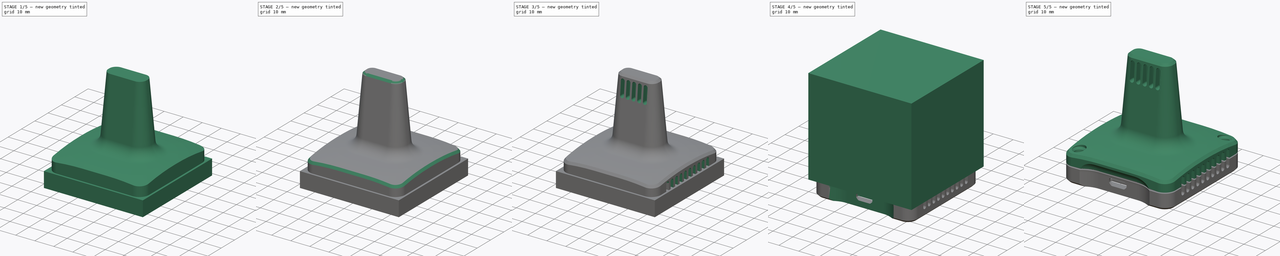
[diagram: build sequence overview — one tinted view per stage of 5, left to right]
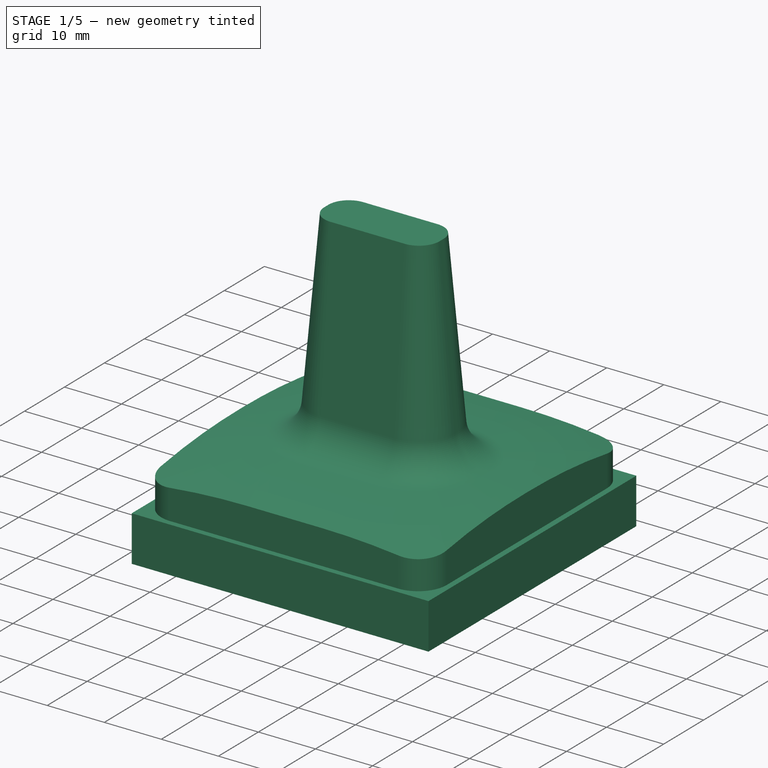
[diagram: stage 1 of 5 — iso view after this stage's code; geometry added in this stage tinted green]
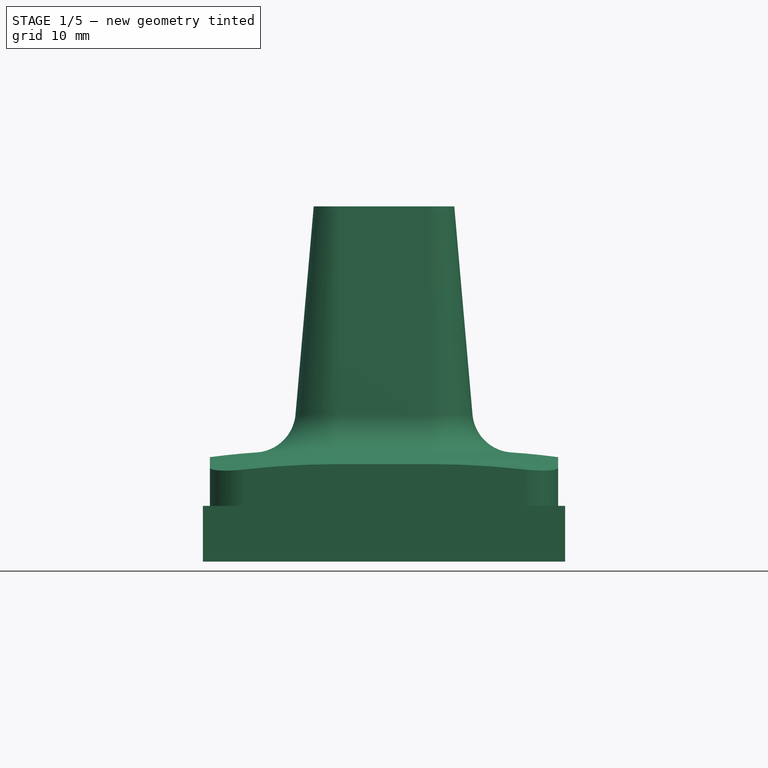
[diagram: stage 1 of 5 — front view after this stage's code; geometry added in this stage tinted green]
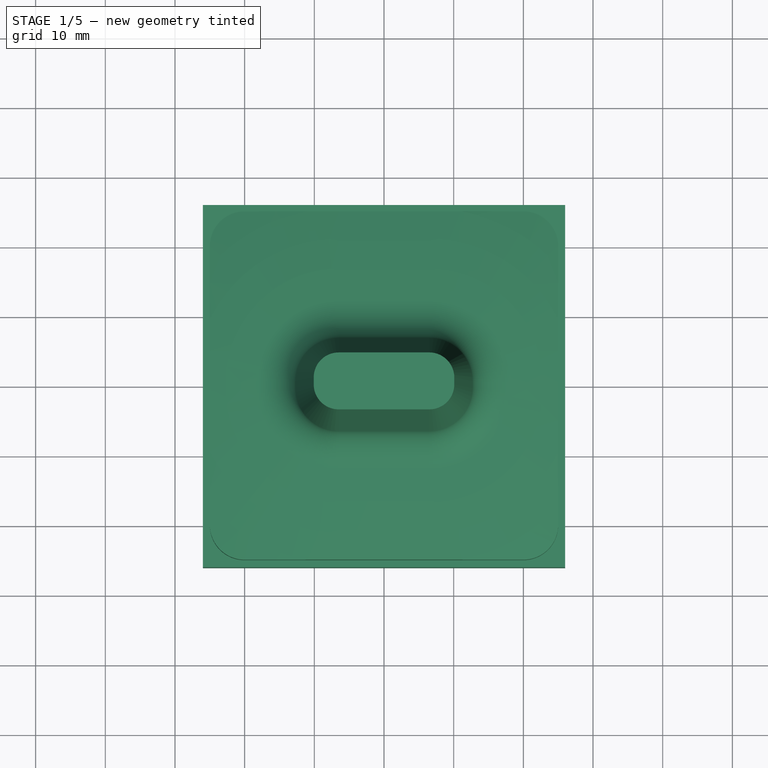
[diagram: stage 1 of 5 — top view after this stage's code; geometry added in this stage tinted green]
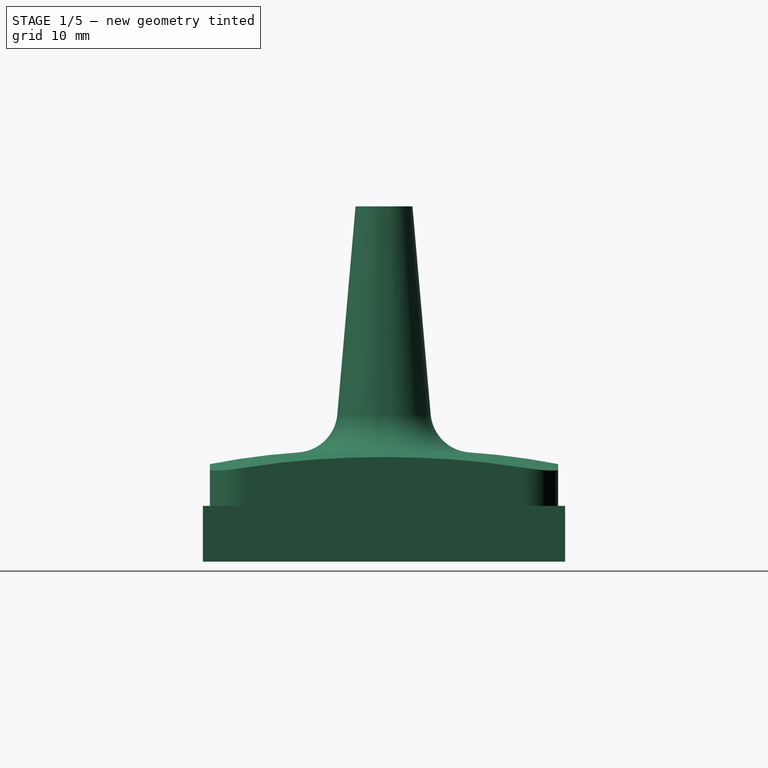
[diagram: stage 1 of 5 — right view after this stage's code; geometry added in this stage tinted green]
FCSTD DOCUMENT  (FreeCAD 0.20R29410 (Git))
Label: SensorHousing2
License: All rights reserved
LicenseURL: http://en.wikipedia.org/wiki/All_rights_reserved
objects: Sketcher::SketchObject×36, PartDesign::Body×14, PartDesign::Pad×13, PartDesign::Pocket×12, PartDesign::SubShapeBinder×8, PartDesign::LinearPattern×5, PartDesign::PolarPattern×4, PartDesign::SubtractivePipe×3, PartDesign::Revolution×2, Part::MultiCommon×2, Part::Feature×1, App::Part×1, PartDesign::Plane×1, PartDesign::AdditivePipe×1, PartDesign::Fillet×1, PartDesign::Chamfer×1, PartDesign::MultiTransform×1, PartDesign::Groove×1
note: 140 computed .brp shape members not serialized (recipe doc carries the construction recipe); baked Part::Feature solids carry a one-line shape summary decoded from their .brp

FEATURE [PartDesign::Body] Body007  label="Resistor3"
  Group = -> [Sketch009,Pad007]
  Origin = -> Origin007
  Tip = -> Pad007
FEATURE [Sketcher::SketchObject] Sketch010
  AttachmentOffset = pos=(0,0,1.6) rot=(0,0,1;0rad)
  FullyConstrained = false
  MapMode = 5
  Placement = pos=(0,0,1.6) rot=(0,0,1;0rad)
  Support = -> [XY_Plane008]
  sketch-geometry (4):
    g0: LineSegment StartX=-0.45 StartY=0.15472 StartZ=0 EndX=0.45 EndY=0.15472 EndZ=0
    g1: LineSegment StartX=0.45 StartY=0.15472 StartZ=0 EndX=0.45 EndY=-1.84528 EndZ=0
    g2: LineSegment StartX=0.45 StartY=-1.84528 StartZ=0 EndX=-0.45 EndY=-1.84528 EndZ=0
    g3: LineSegment StartX=-0.45 StartY=-1.84528 StartZ=0 EndX=-0.45 EndY=0.15472 EndZ=0
  constraints (11):
    c: Coincident(g0,g1)
    c: Coincident(g1,g2)
    c: Coincident(g2,g3)
    c: Coincident(g3,g0)
    c: Horizontal(g2)
    c: Vertical(g1)
    c: Vertical(g3)
    c: DistanceY(g3,g3) = 2
    c: DistanceX(g0,g0) = 0.9
    c: DistanceY(g2) = -1.84528
    c: Symmetric(g0,g0,g-2)
FEATURE [PartDesign::Pad] Pad008
  AllowMultiFace = false
  Direction = (1,1,1)
  Length = 0.6
  Length2 = 100
  Profile = -> Sketch010
  Type = 0
FEATURE [PartDesign::Body] Body008  label="Resistor4"
  Group = -> [Sketch010,Pad008]
  Origin = -> Origin008
  Tip = -> Pad008
FEATURE [Sketcher::SketchObject] Sketch011
  AttachmentOffset = pos=(0,0,1.6) rot=(0,0,1;0rad)
  FullyConstrained = false
  MapMode = 5
  Placement = pos=(0,0,1.6) rot=(0,0,1;0rad)
  sketch-geometry (4):
    g0: LineSegment StartX=0.95 StartY=0.15472 StartZ=0 EndX=1.85 EndY=0.15472 EndZ=0
    g1: LineSegment StartX=1.85 StartY=0.15472 StartZ=0 EndX=1.85 EndY=-1.84528 EndZ=0
    g2: LineSegment StartX=1.85 StartY=-1.84528 StartZ=0 EndX=0.95 EndY=-1.84528 EndZ=0
    g3: LineSegment StartX=0.95 StartY=-1.84528 StartZ=0 EndX=0.95 EndY=0.15472 EndZ=0
  constraints (12):
    c: Coincident(g0,g1)
    c: Coincident(g1,g2)
    c: Coincident(g2,g3)
    c: Coincident(g3,g0)
    c: Horizontal(g0)
    c: Horizontal(g2)
    c: Vertical(g1)
    c: Vertical(g3)
    c: DistanceY(g3,g3) = 2
    c: DistanceX(g0,g0) = 0.9
    c: DistanceY(g2) = -1.84528
    c: DistanceX(g1) = 1.85
FEATURE [PartDesign::Pad] Pad009
  AllowMultiFace = false
  Direction = (1,1,1)
  Length = 0.6
  Length2 = 100
  Placement = pos=(0,0,1.6) rot=(0,0,1;0rad)
  Profile = -> Sketch011
  Type = 0
FEATURE [PartDesign::Body] Body009  label="Resistor5"
  Group = -> [Sketch011,Pad009]
  Tip = -> Pad009
FEATURE [Sketcher::SketchObject] Sketch012
  AttachmentOffset = pos=(0,0,1.6) rot=(0,0,1;0rad)
  FullyConstrained = false
  MapMode = 5
  Placement = pos=(0,0,1.6) rot=(0,0,1;0rad)
  sketch-geometry (4):
    g0: LineSegment StartX=2.35 StartY=0.15472 StartZ=0 EndX=3.25 EndY=0.15472 EndZ=0
    g1: LineSegment StartX=3.25 StartY=0.15472 StartZ=0 EndX=3.25 EndY=-1.84528 EndZ=0
    g2: LineSegment StartX=3.25 StartY=-1.84528 StartZ=0 EndX=2.35 EndY=-1.84528 EndZ=0
    g3: LineSegment StartX=2.35 StartY=-1.84528 StartZ=0 EndX=2.35 EndY=0.15472 EndZ=0
  constraints (12):
    c: Coincident(g0,g1)
    c: Coincident(g1,g2)
    c: Coincident(g2,g3)
    c: Coincident(g3,g0)
    c: Horizontal(g0)
    c: Horizontal(g2)
    c: Vertical(g1)
    c: Vertical(g3)
    c: DistanceY(g3,g3) = 2
    c: DistanceX(g0,g0) = 0.9
    c: DistanceY(g2) = -1.84528
    c: DistanceX(g1) = 3.25
FEATURE [PartDesign::Pad] Pad010
  AllowMultiFace = false
  Direction = (1,1,1)
  Length = 0.6
  Length2 = 100
  Placement = pos=(0,0,1.6) rot=(0,0,1;0rad)
  Profile = -> Sketch012
  Type = 0
FEATURE [PartDesign::Body] Body012  label="SelftappingScrew3.0x12_02"
  Group = -> [Sketch015,Revolution001,Sketch016,Pocket002,PolarPattern001]
  Origin = -> Origin011
  Placement = pos=(-20,-20,11.5) rot=(0,0,1;0rad)
  Tip = -> PolarPattern001
FEATURE [Sketcher::SketchObject] Sketch040  label="hs base"
  FullyConstrained = true
  MapMode = 5
  Placement = pos=(0,0,0) rot=(0.57735,0.57735,0.57735;2.0944rad)
  Support = -> [YZ_Plane013]
  sketch-geometry (4):
    g0: LineSegment StartX=25 StartY=49 StartZ=0 EndX=25 EndY=-1 EndZ=0
    g1: LineSegment StartX=25 StartY=-1 StartZ=0 EndX=-25 EndY=-1 EndZ=0
    g2: LineSegment StartX=-25 StartY=-1 StartZ=0 EndX=-25 EndY=49 EndZ=0
    g3: LineSegment StartX=-25 StartY=49 StartZ=0 EndX=25 EndY=49 EndZ=0
  constraints (11):
    c: Coincident(g0,g1)
    c: Coincident(g1,g2)
    c: Vertical(g0)
    c: Vertical(g2)
    c: DistanceY(g1,g-1) = 1
    c: DistanceY(g0,g3) = 50
    c: DistanceX(g1,g1) = 50
    c: Symmetric(g0,g1,g-2)
    c: Coincident(g3,g0)
    c: Coincident(g2,g3)
    c: Horizontal(g3)
FEATURE [PartDesign::Pad] Pad013  label="HS Base"
  Direction = (1,-2e-16,3e-16)
  Length = 50
  Length2 = 10
  Midplane = true
  Placement = pos=(0,0,0) rot=(0.57735,0.57735,0.57735;2.0944rad)
  Profile = -> Sketch040
  ReferenceAxis = -> Sketch040 [N_Axis]
  Type = 0
FEATURE [PartDesign::Body] Body  label="Spacer"
  Group = -> [Binder003,Sketch048,Pad014]
  Origin = -> Origin
  Tip = -> Pad014
FEATURE [Sketcher::SketchObject] Sketch049  label="sb base"
  FullyConstrained = true
  MapMode = 5
  Placement = pos=(0,0,0) rot=(0.57735,0.57735,0.57735;2.0944rad)
  Support = -> [YZ_Plane014]
  sketch-geometry (4):
    g0: LineSegment StartX=-26 StartY=6 StartZ=0 EndX=26 EndY=6 EndZ=0
    g1: LineSegment StartX=26 StartY=6 StartZ=0 EndX=26 EndY=-2 EndZ=0
    g2: LineSegment StartX=26 StartY=-2 StartZ=0 EndX=-26 EndY=-2 EndZ=0
    g3: LineSegment StartX=-26 StartY=-2 StartZ=0 EndX=-26 EndY=6 EndZ=0
  constraints (11):
    c: Coincident(g0,g1)
    c: Coincident(g1,g2)
    c: Coincident(g2,g3)
    c: Coincident(g3,g0)
    c: Horizontal(g0)
    c: Vertical(g1)
    c: Vertical(g3)
    c: Symmetric(g1,g2,g-2)
    c: DistanceX(g2,g2) = 52
    c: DistanceY(g0) = 6
    c: DistanceY(g1,g-1) = 2
FEATURE [PartDesign::Pad] Pad015  label="SB Base"
  Direction = (1,-2e-16,3e-16)
  Length = 52
  Length2 = 10
  Midplane = true
  Placement = pos=(0,0,0) rot=(0.57735,0.57735,0.57735;2.0944rad)
  Profile = -> Sketch049
  ReferenceAxis = -> Sketch049 [N_Axis]
  Type = 0
FEATURE [Sketcher::SketchObject] Sketch050  label="sb rim trj"
  FullyConstrained = false
  MapMode = 5
  Support = -> [XY_Plane014]
  sketch-geometry (10):
    g0: ArcOfCircle CenterX=-13 CenterY=13 CenterZ=0 NormalX=0 NormalY=0 NormalZ=1 AngleXU=0 Radius=8 StartAngle=1.5708 EndAngle=3.14159
    g1: LineSegment StartX=-13 StartY=21 StartZ=0 EndX=13 EndY=21 EndZ=0
    g2: ArcOfCircle CenterX=13 CenterY=13 CenterZ=0 NormalX=0 NormalY=0 NormalZ=1 AngleXU=0 Radius=8 StartAngle=-2.984e-13 EndAngle=1.5708
    g3: LineSegment StartX=21 StartY=13 StartZ=0 EndX=21 EndY=-13 EndZ=0
    g4: ArcOfCircle CenterX=13 CenterY=-13 CenterZ=0 NormalX=0 NormalY=0 NormalZ=1 AngleXU=0 Radius=8 StartAngle=4.71239 EndAngle=6.28319
    g5: ArcOfCircle CenterX=-13 CenterY=-13 CenterZ=0 NormalX=0 NormalY=0 NormalZ=1 AngleXU=0 Radius=8 StartAngle=3.14159 EndAngle=4.71239
    g6: LineSegment StartX=-21 StartY=-13 StartZ=0 EndX=-21 EndY=13 EndZ=0
    g7: GeomPoint X=-21 Y=21 Z=0
    g8: GeomPoint X=21 Y=-19 Z=0
    g9: LineSegment StartX=-13 StartY=-21 StartZ=0 EndX=13 EndY=-21 EndZ=0
  constraints (21):
    c: Tangent(g0,g1) = 1.5708
    c: Tangent(g1,g2) = 1.5708
    c: Tangent(g2,g3) = 1.5708
    c: Tangent(g3,g4) = 1.5708
    c: Tangent(g5,g6) = 1.5708
    c: Tangent(g6,g0) = 1.5708
    c: Horizontal(g1)
    c: Vertical(g3)
    c: Vertical(g6)
    c: Equal(g4,g5)
    c: PointOnObject(g7,g1)
    c: PointOnObject(g7,g6)
    c: PointOnObject(g8,g3)
    c: Symmetric(g2,g0,g-2)
    c: Symmetric(g2,g4,g-1)
    c: DistanceX(g0,g2) = 42
    c: Equal(g3,g1)
    c: Horizontal(g9)
    c: Tangent(g4,g9) = -1.5708
    c: Tangent(g5,g9) = -1.5708
    c: Radius(g2) = 8
FEATURE [Sketcher::SketchObject] Sketch051  label="sb rim crs"
  ExternalGeometry = -> [Sketch050,Sketch049]
  FullyConstrained = true
  MapMode = 5
  Placement = pos=(0,0,0) rot=(0.57735,0.57735,0.57735;2.0944rad)
  Support = -> [YZ_Plane014]
  sketch-geometry (5):
    g0: LineSegment StartX=-19.6287 StartY=6 StartZ=0 EndX=-20.25 EndY=7.5 EndZ=0
    g1: LineSegment StartX=-20.25 StartY=7.5 StartZ=0 EndX=-21.75 EndY=7.5 EndZ=0
    g2: LineSegment StartX=-21.75 StartY=7.5 StartZ=0 EndX=-22.3713 EndY=6 EndZ=0
    g3: LineSegment StartX=-22.3713 StartY=6 StartZ=0 EndX=-19.6287 EndY=6 EndZ=0
    g4: LineSegment StartX=-21 StartY=-5.8e-15 StartZ=0 EndX=-21 EndY=7.5 EndZ=0
  constraints (13):
    c: Coincident(g0,g1)
    c: Horizontal(g1)
    c: Coincident(g1,g2)
    c: Coincident(g2,g3)
    c: Coincident(g3,g0)
    c: Coincident(g4,g-3)
    c: PointOnObject(g4,g1)
    c: Symmetric(g1,g0,g4)
    c: Symmetric(g2,g0,g4)
    c: DistanceX(g1,g1) = 1.5
    c: Distance(g0,g-4) = 1.5
    c: Angle(g2,g0) = 0.785398
    c: PointOnObject(g0,g-4)
FEATURE [PartDesign::AdditivePipe] AdditivePipe  label="SB Rim"
  AuxilleryCurvelinear = true
  AuxillerySpineTangent = false
  BaseFeature = -> Pad015
  Binormal = (0,0,0)
  Mode = 0
  Placement = pos=(0,0,0) rot=(0.57735,0.57735,0.57735;2.0944rad)
  Profile = -> Sketch051
  Spine = -> Sketch050
  SpineTangent = false
  Transformation = 0
  Transition = 0
FEATURE [Sketcher::SketchObject] Sketch060  label="hs vent hole bottom"
  FullyConstrained = true
  MapMode = 5
  Support = -> [XY_Plane013]
  sketch-geometry (4):
    g0: ArcOfCircle CenterX=-8.5 CenterY=-15 CenterZ=0 NormalX=0 NormalY=0 NormalZ=1 AngleXU=0 Radius=1 StartAngle=1.5708 EndAngle=4.71239
    g1: ArcOfCircle CenterX=8.5 CenterY=-15 CenterZ=0 NormalX=0 NormalY=0 NormalZ=1 AngleXU=0 Radius=1 StartAngle=4.71239 EndAngle=7.85398
    g2: LineSegment StartX=-8.5 StartY=-16 StartZ=0 EndX=8.5 EndY=-16 EndZ=0
    g3: LineSegment StartX=8.5 StartY=-14 StartZ=0 EndX=-8.5 EndY=-14 EndZ=0
  constraints (9):
    c: Tangent(g0,g2) = -1.5708
    c: Tangent(g2,g1) = -1.5708
    c: Tangent(g1,g3) = -1.5708
    c: Tangent(g3,g0) = -1.5708
    c: Equal(g0,g1)
    c: Diameter(g1) = 2
    c: Symmetric(g1,g0,g-2)
    c: DistanceX(g3,g3) = 17
    c: DistanceY(g1,g-1) = 15
FEATURE [Sketcher::SketchObject] Sketch061  label="st screw holes"
  AttachmentOffset = pos=(0,0,9.5) rot=(0,0,1;0rad)
  FullyConstrained = true
  MapMode = 5
  Placement = pos=(0,0,9.5) rot=(0,0,1;0rad)
  Support = -> [XY_Plane015]
  sketch-geometry (2):
    g0: Circle CenterX=20 CenterY=20 CenterZ=0 NormalX=0 NormalY=0 NormalZ=1 AngleXU=0 Radius=3.5
    g1: Circle CenterX=-20 CenterY=-20 CenterZ=0 NormalX=0 NormalY=0 NormalZ=1 AngleXU=0 Radius=3.5
  constraints (5):
    c: DistanceX(g0) = 20
    c: DistanceY(g0) = 20
    c: Diameter(g0) = 7
    c: Symmetric(g1,g0,g-1)
    c: Equal(g1,g0)
FEATURE [Sketcher::SketchObject] Sketch062
  AttachmentOffset = pos=(0,0,9.5) rot=(0,0,1;0rad)
  FullyConstrained = true
  MapMode = 5
  Placement = pos=(0,0,9.5) rot=(0,0,1;0rad)
  Support = -> [XY_Plane014]
  sketch-geometry (2):
    g0: Circle CenterX=20 CenterY=20 CenterZ=0 NormalX=0 NormalY=0 NormalZ=1 AngleXU=0 Radius=3.25
    g1: Circle CenterX=-20 CenterY=-20 CenterZ=0 NormalX=0 NormalY=0 NormalZ=1 AngleXU=0 Radius=3.25
  constraints (5):
    c: DistanceX(g0) = 20
    c: DistanceY(g0) = 20
    c: Symmetric(g0,g1,g-1)
    c: Equal(g1,g0)
    c: Diameter(g0) = 6.5
FEATURE [PartDesign::Pad] Pad018  label="SB Screw pillars"
  BaseFeature = -> AdditivePipe
  Direction = (0,0,1)
  Length = 10
  Length2 = 10
  Placement = pos=(0,0,0) rot=(0.57735,0.57735,0.57735;2.0944rad)
  Profile = -> Sketch062
  ReferenceAxis = -> Sketch062 [N_Axis]
  Reversed = true
  Type = 2
FEATURE [PartDesign::Body] Body016  label="Separation top"
  Group = -> [Binder005,Sketch057,Pad016,Binder006,Binder007,Sketch058,Sketch059,SubtractivePipe001,Sketch061,Pocket020,Sketch056,Pocket021]
  Origin = -> Origin015
  Tip = -> Pocket021
FEATURE [Sketcher::SketchObject] Sketch063  label="hs cutout trj"
  FullyConstrained = true
  MapMode = 5
  Support = -> [XY_Plane013]
  sketch-geometry (10):
    g0: ArcOfCircle CenterX=-6.5 CenterY=0.5 CenterZ=0 NormalX=0 NormalY=0 NormalZ=1 AngleXU=0 Radius=2.5 StartAngle=1.5708 EndAngle=3.14159
    g1: LineSegment StartX=-6.5 StartY=3 StartZ=0 EndX=6.5 EndY=3 EndZ=0
    g2: ArcOfCircle CenterX=6.5 CenterY=0.5 CenterZ=0 NormalX=0 NormalY=0 NormalZ=1 AngleXU=0 Radius=2.5 StartAngle=1.6e-15 EndAngle=1.5708
    g3: LineSegment StartX=9 StartY=0.5 StartZ=0 EndX=9 EndY=-0.5 EndZ=0
    g4: ArcOfCircle CenterX=6.5 CenterY=-0.5 CenterZ=0 NormalX=0 NormalY=0 NormalZ=1 AngleXU=0 Radius=2.5 StartAngle=4.71239 EndAngle=6.28319
    g5: LineSegment StartX=6.5 StartY=-3 StartZ=0 EndX=-6.5 EndY=-3 EndZ=0
    g6: ArcOfCircle CenterX=-6.5 CenterY=-0.5 CenterZ=0 NormalX=0 NormalY=0 NormalZ=1 AngleXU=0 Radius=2.5 StartAngle=3.14159 EndAngle=4.71239
    g7: LineSegment StartX=-9 StartY=-0.5 StartZ=0 EndX=-9 EndY=0.5 EndZ=0
    g8: GeomPoint X=-9 Y=3 Z=0
    g9: GeomPoint X=9 Y=-3 Z=0
  constraints (22):
    c: Tangent(g0,g1) = 1.5708
    c: Tangent(g1,g2) = 1.5708
    c: Tangent(g2,g3) = 1.5708
    c: Tangent(g3,g4) = 1.5708
    c: Tangent(g4,g5) = 1.5708
    c: Tangent(g5,g6) = 1.5708
    c: Tangent(g6,g7) = 1.5708
    c: Tangent(g7,g0) = 1.5708
    c: Horizontal(g1)
    c: Horizontal(g5)
    c: Vertical(g3)
    c: Vertical(g7)
    c: Equal(g4,g6)
    c: PointOnObject(g8,g1)
    c: PointOnObject(g8,g7)
    c: PointOnObject(g9,g3)
    c: PointOnObject(g9,g5)
    c: Symmetric(g2,g4,g-1)
    c: Symmetric(g2,g0,g-2)
    c: Radius(g2) = 2.5
    c: DistanceY(g4,g1) = 6
    c: DistanceX(g0,g2) = 18
FEATURE [PartDesign::SubtractivePipe] SubtractivePipe002  label="HS Cutout"
  AuxilleryCurvelinear = true
  AuxillerySpineTangent = false
  BaseFeature = -> Pad013
  Binormal = (0,0,0)
  Mode = 0
  Placement = pos=(0,0,0) rot=(0.57735,0.57735,0.57735;2.0944rad)
  Profile = -> Sketch041
  Spine = -> Sketch063
  SpineTangent = false
  Transformation = 0
  Transition = 0
FEATURE [PartDesign::Fillet] Fillet  label="HS Fillet"
  Base = -> SubtractivePipe002 [Edge3,Edge14,Edge8,Edge1]
  BaseFeature = -> SubtractivePipe002
  Placement = pos=(0,0,0) rot=(0.57735,0.57735,0.57735;2.0944rad)
  Radius = 5
  SupportTransform = false
  UseAllEdges = false
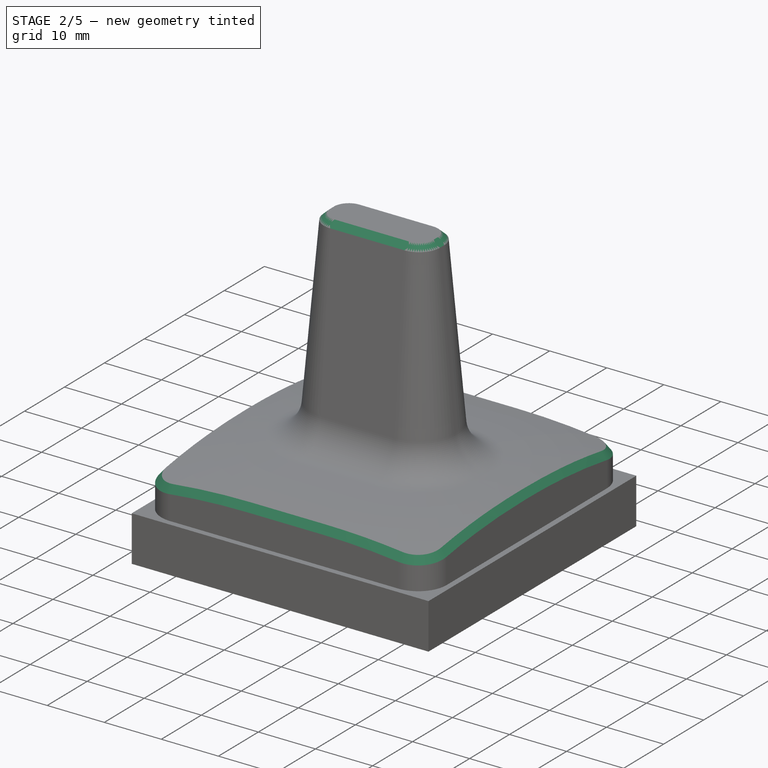
[diagram: stage 2 of 5 — iso view after this stage's code; geometry added in this stage tinted green]
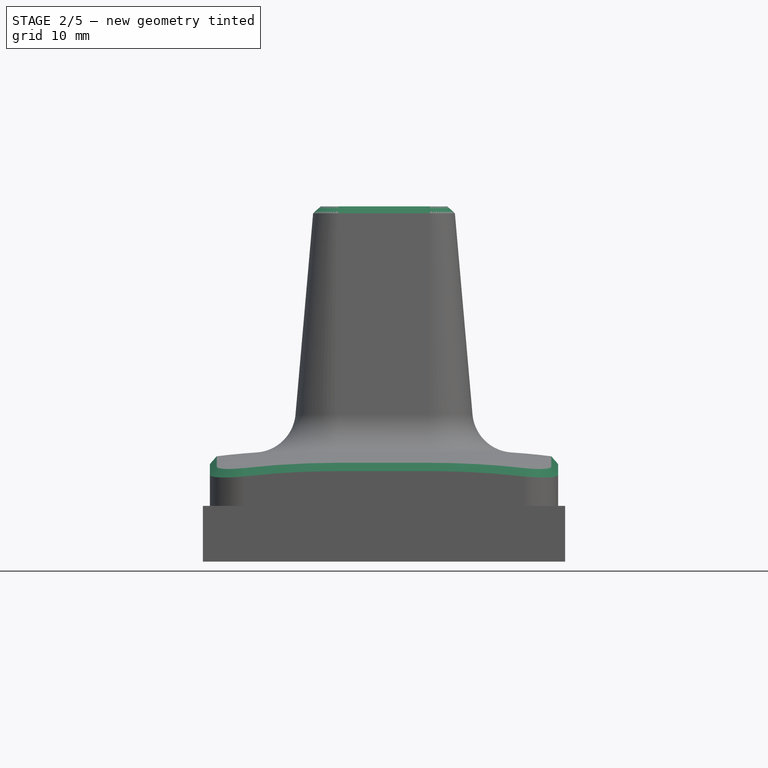
[diagram: stage 2 of 5 — front view after this stage's code; geometry added in this stage tinted green]
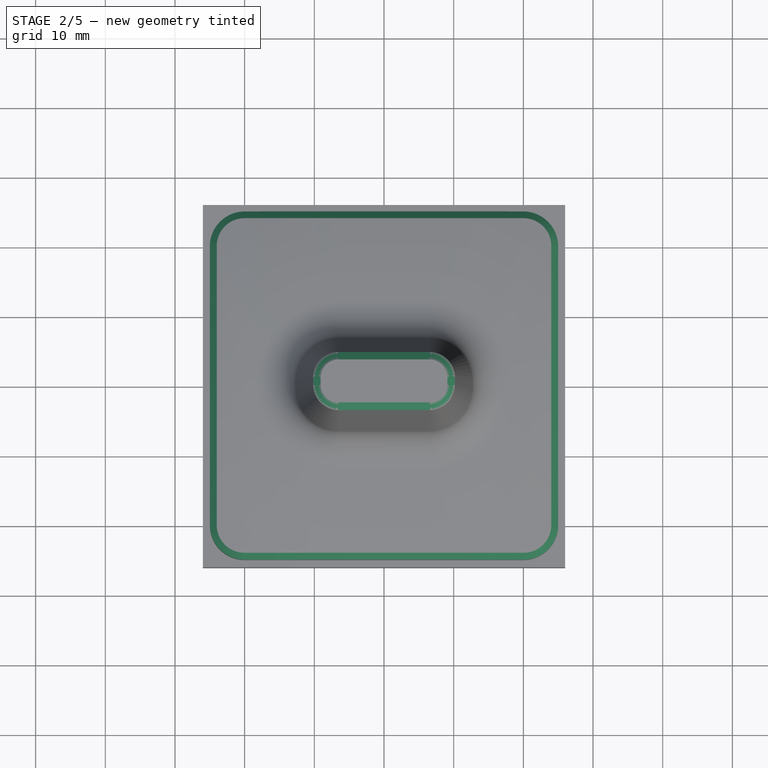
[diagram: stage 2 of 5 — top view after this stage's code; geometry added in this stage tinted green]
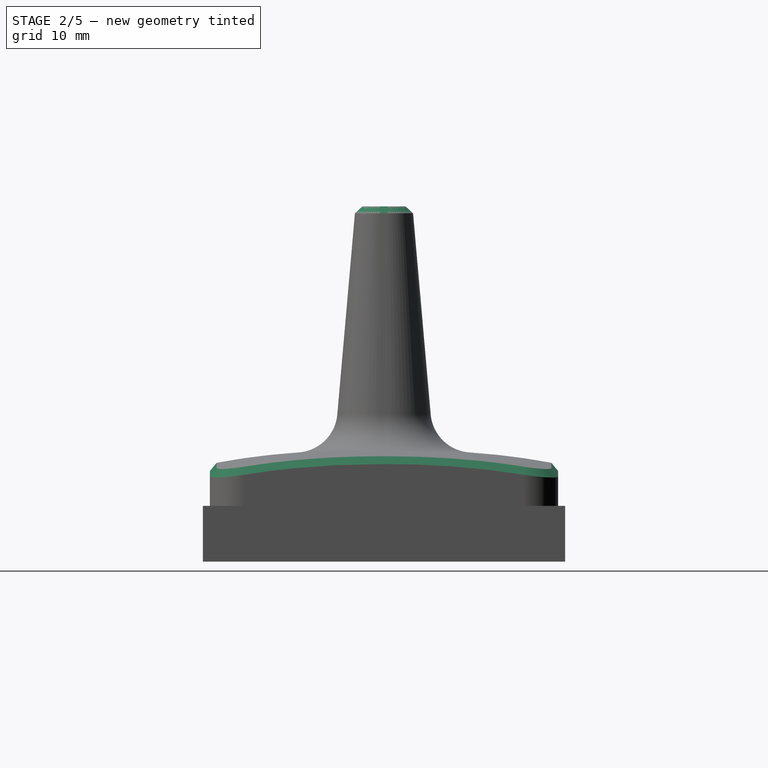
[diagram: stage 2 of 5 — right view after this stage's code; geometry added in this stage tinted green]
FEATURE [Part::Feature] Part__Feature  label="MH-ET_LIVE_MiniKit"
  Placement = pos=(0,-1.5,1) rot=(1,0,0;1.5708rad)
  shape: bbox 31.02 x 39.44 x 99.68 mm, 5494 faces, 23 solids (baked)
FEATURE [Sketcher::SketchObject] Sketch
  FullyConstrained = false
  MapMode = 5
  Support = -> [XY_Plane001]
  sketch-geometry (7):
    g0: LineSegment StartX=-7.65 StartY=5.8 StartZ=0 EndX=7.65 EndY=5.8 EndZ=0
    g1: LineSegment StartX=7.65 StartY=5.8 StartZ=0 EndX=7.65 EndY=-5.8 EndZ=0
    g2: LineSegment StartX=7.65 StartY=-5.8 StartZ=0 EndX=-7.65 EndY=-5.8 EndZ=0
    g3: LineSegment StartX=-7.65 StartY=-5.8 StartZ=0 EndX=-7.65 EndY=5.8 EndZ=0
    g4: Circle CenterX=-5.05 CenterY=3.4 CenterZ=0 NormalX=0 NormalY=0 NormalZ=1 AngleXU=0 Radius=1.575
    g5: Circle CenterX=5.05 CenterY=3.4 CenterZ=0 NormalX=0 NormalY=0 NormalZ=1 AngleXU=0 Radius=1.575
    g6: LineSegment StartX=5.05 StartY=4.975 StartZ=0 EndX=5.05 EndY=5.8 EndZ=0
  constraints (19):
    c: Horizontal(g2)
    c: Vertical(g3)
    c: Symmetric(g1,g3,g-2)
    c: Symmetric(g2,g0,g-1)
    c: DistanceX(g3,g1) = 15.3
    c: DistanceY(g2,g0) = 11.6
    c: Equal(g5,g4)
    c: Symmetric(g5,g4,g-2)
    c: Radius(g5) = 1.575
    c: DistanceX(g4,g5) = 10.1
    c: Coincident(g0,g1)
    c: Coincident(g0,g3)
    c: Coincident(g2,g3)
    c: Coincident(g1,g2)
    c: PointOnObject(g6,g5)
    c: PointOnObject(g6,g0)
    c: Vertical(g6)
    c: PointOnObject(g5,g6)
    c: DistanceY(g4) = 3.4
FEATURE [PartDesign::Pad] Pad  label="Board"
  AllowMultiFace = false
  Direction = (1,1,1)
  Length = 1.6
  Length2 = 100
  Profile = -> Sketch
  Type = 0
FEATURE [Sketcher::SketchObject] Sketch001
  FullyConstrained = false
  MapMode = 5
  Support = -> [XY_Plane001]
  sketch-geometry (1):
    g0: Circle CenterX=-6.35 CenterY=-4.6 CenterZ=0 NormalX=0 NormalY=0 NormalZ=1 AngleXU=0 Radius=0.5
  constraints (3):
    c: DistanceX(g0,g-1) = 6.35
    c: Radius(g0) = 0.5
    c: DistanceY(g0,g-1) = 4.6
FEATURE [PartDesign::Pocket] Pocket  label="HoleFrontFirst"
  AllowMultiFace = false
  BaseFeature = -> Pad
  Direction = (1,1,1)
  Length = 5
  Length2 = 100
  Midplane = true
  Profile = -> Sketch001
  Type = 1
FEATURE [PartDesign::LinearPattern] LinearPattern  label="HoleFrontOthers"
  BaseFeature = -> Pocket
  Direction = -> X_Axis001
  Length = 12.7
  Occurrences = 6
  Originals = -> [Pocket]
FEATURE [PartDesign::Body] Body001  label="PCB"
  Group = -> [Sketch,Pad,Sketch001,Pocket,LinearPattern]
  Origin = -> Origin001
  Tip = -> LinearPattern
FEATURE [Sketcher::SketchObject] Sketch004
  AttachmentOffset = pos=(0,0,1.6) rot=(0,0,1;0rad)
  FullyConstrained = false
  MapMode = 5
  Placement = pos=(0,0,1.6) rot=(0,0,1;0rad)
  Support = -> [XY_Plane002]
  sketch-geometry (4):
    g0: LineSegment StartX=-1.1 StartY=3.4 StartZ=0 EndX=1.1 EndY=3.4 EndZ=0
    g1: LineSegment StartX=1.1 StartY=3.4 StartZ=0 EndX=1.1 EndY=1.8 EndZ=0
    g2: LineSegment StartX=1.1 StartY=1.8 StartZ=0 EndX=-1.1 EndY=1.8 EndZ=0
    g3: LineSegment StartX=-1.1 StartY=1.8 StartZ=0 EndX=-1.1 EndY=3.4 EndZ=0
  constraints (11):
    c: Coincident(g0,g1)
    c: Coincident(g1,g2)
    c: Coincident(g2,g3)
    c: Coincident(g3,g0)
    c: Horizontal(g2)
    c: Vertical(g1)
    c: Vertical(g3)
    c: DistanceX(g0,g0) = 2.2
    c: DistanceY(g1,g1) = 1.6
    c: Symmetric(g0,g0,g-2)
    c: DistanceY(g1) = 1.8
FEATURE [PartDesign::Pad] Pad002
  AllowMultiFace = false
  Direction = (1,1,1)
  Length = 1.2
  Length2 = 100
  Profile = -> Sketch004
  Type = 0
FEATURE [PartDesign::Body] Body002  label="BME280 device"
  Group = -> [Sketch004,Pad002]
  Origin = -> Origin002
  Tip = -> Pad002
FEATURE [Sketcher::SketchObject] Sketch005
  AttachmentOffset = pos=(0,0,1.6) rot=(0,0,1;0rad)
  FullyConstrained = false
  MapMode = 5
  Placement = pos=(0,0,1.6) rot=(0,0,1;0rad)
  Support = -> [XY_Plane003]
  sketch-geometry (4):
    g0: LineSegment StartX=-1 StartY=5.21574 StartZ=0 EndX=1 EndY=5.21574 EndZ=0
    g1: LineSegment StartX=1 StartY=5.21574 StartZ=0 EndX=1 EndY=4.31574 EndZ=0
    g2: LineSegment StartX=1 StartY=4.31574 StartZ=0 EndX=-1 EndY=4.31574 EndZ=0
    g3: LineSegment StartX=-1 StartY=4.31574 StartZ=0 EndX=-1 EndY=5.21574 EndZ=0
  constraints (10):
    c: Coincident(g0,g1)
    c: Coincident(g1,g2)
    c: Coincident(g2,g3)
    c: Coincident(g3,g0)
    c: Horizontal(g0)
    c: Vertical(g1)
    c: Vertical(g3)
    c: DistanceY(g3,g3) = 0.9
    c: DistanceX(g0,g0) = 2
    c: Symmetric(g2,g1,g-2)
FEATURE [PartDesign::Pad] Pad003
  AllowMultiFace = false
  Direction = (1,1,1)
  Length = 0.6
  Length2 = 100
  Profile = -> Sketch005
  Type = 0
FEATURE [PartDesign::Body] Body003  label="Resistor1"
  Group = -> [Sketch005,Pad003]
  Origin = -> Origin003
  Tip = -> Pad003
FEATURE [Sketcher::SketchObject] Sketch008
  AttachmentOffset = pos=(0,0,1.6) rot=(0,0,1;0rad)
  FullyConstrained = false
  MapMode = 5
  Placement = pos=(0,0,1.6) rot=(0,0,1;0rad)
  Support = -> [XY_Plane006]
  sketch-geometry (4):
    g0: LineSegment StartX=-3.25 StartY=0.15472 StartZ=0 EndX=-2.35 EndY=0.15472 EndZ=0
    g1: LineSegment StartX=-2.35 StartY=0.15472 StartZ=0 EndX=-2.35 EndY=-1.84528 EndZ=0
    g2: LineSegment StartX=-2.35 StartY=-1.84528 StartZ=0 EndX=-3.25 EndY=-1.84528 EndZ=0
    g3: LineSegment StartX=-3.25 StartY=-1.84528 StartZ=0 EndX=-3.25 EndY=0.15472 EndZ=0
  constraints (12):
    c: Coincident(g0,g1)
    c: Coincident(g1,g2)
    c: Coincident(g2,g3)
    c: Coincident(g3,g0)
    c: Horizontal(g0)
    c: Horizontal(g2)
    c: Vertical(g1)
    c: Vertical(g3)
    c: DistanceY(g3,g3) = 2
    c: DistanceX(g0,g0) = 0.9
    c: DistanceY(g2) = -1.84528
    c: DistanceX(g2,g-1) = 3.25
FEATURE [PartDesign::Pad] Pad006
  AllowMultiFace = false
  Direction = (1,1,1)
  Length = 0.6
  Length2 = 100
  Profile = -> Sketch008
  Type = 0
FEATURE [PartDesign::Body] Body006  label="Resistor2"
  Group = -> [Sketch008,Pad006]
  Origin = -> Origin006
  Tip = -> Pad006
FEATURE [Sketcher::SketchObject] Sketch009
  AttachmentOffset = pos=(0,0,1.6) rot=(0,0,1;0rad)
  FullyConstrained = false
  MapMode = 5
  Placement = pos=(0,0,1.6) rot=(0,0,1;0rad)
  Support = -> [XY_Plane007]
  sketch-geometry (4):
    g0: LineSegment StartX=-1.85 StartY=0.15472 StartZ=0 EndX=-0.95 EndY=0.15472 EndZ=0
    g1: LineSegment StartX=-0.95 StartY=0.15472 StartZ=0 EndX=-0.95 EndY=-1.84528 EndZ=0
    g2: LineSegment StartX=-0.95 StartY=-1.84528 StartZ=0 EndX=-1.85 EndY=-1.84528 EndZ=0
    g3: LineSegment StartX=-1.85 StartY=-1.84528 StartZ=0 EndX=-1.85 EndY=0.15472 EndZ=0
  constraints (12):
    c: Coincident(g0,g1)
    c: Coincident(g1,g2)
    c: Coincident(g2,g3)
    c: Coincident(g3,g0)
    c: Horizontal(g0)
    c: Horizontal(g2)
    c: Vertical(g1)
    c: Vertical(g3)
    c: DistanceY(g3,g3) = 2
    c: DistanceX(g0,g0) = 0.9
    c: DistanceY(g2) = -1.84528
    c: DistanceX(g2) = -1.85
FEATURE [PartDesign::Pad] Pad007
  AllowMultiFace = false
  Direction = (1,1,1)
  Length = 0.6
  Length2 = 100
  Profile = -> Sketch009
  Type = 0
FEATURE [PartDesign::Chamfer] Chamfer  label="HS Chamfer"
  Angle = 45
  Base = -> Fillet
  BaseFeature = -> Fillet
  ChamferType = 0
  FlipDirection = false
  Placement = pos=(0,0,0) rot=(0.57735,0.57735,0.57735;2.0944rad)
  Size = 1
  Size2 = 1
  SupportTransform = false
  UseAllEdges = true
FEATURE [PartDesign::Pocket] Pocket011  label="HS Cutout USB port"
  BaseFeature = -> Chamfer
  Direction = (0,1,2e-16)
  Length = 5
  Length2 = 5
  Placement = pos=(0,0,0) rot=(0.57735,0.57735,0.57735;2.0944rad)
  Profile = -> Sketch042
  ReferenceAxis = -> Sketch042 [N_Axis]
  Reversed = true
  Type = 1
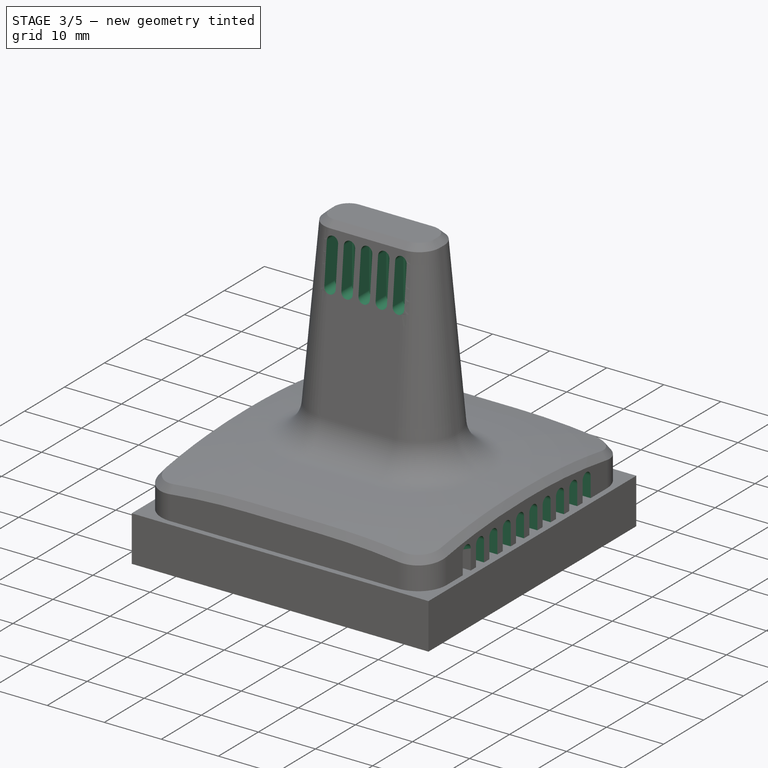
[diagram: stage 3 of 5 — iso view after this stage's code; geometry added in this stage tinted green]
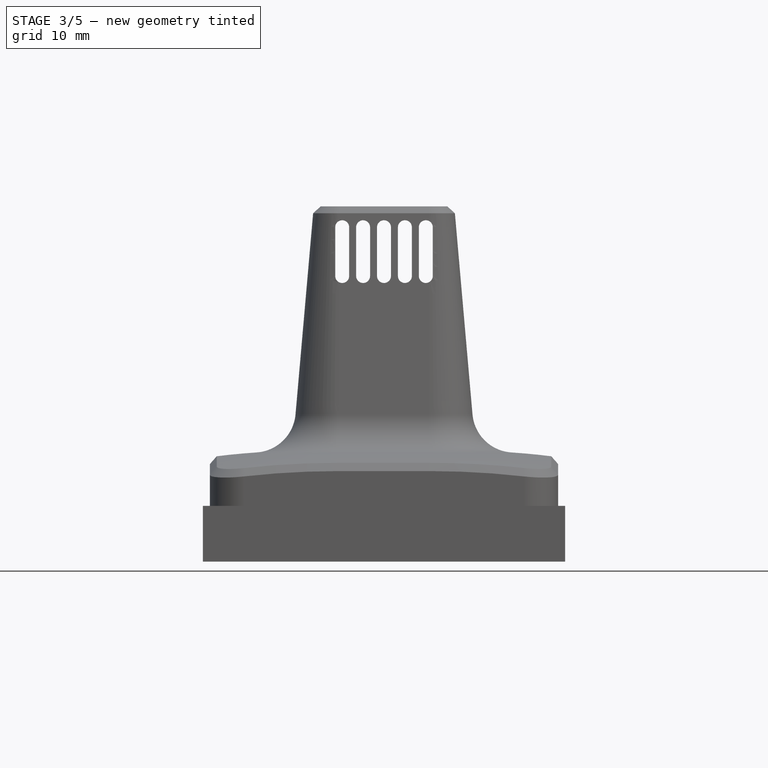
[diagram: stage 3 of 5 — front view after this stage's code; geometry added in this stage tinted green]
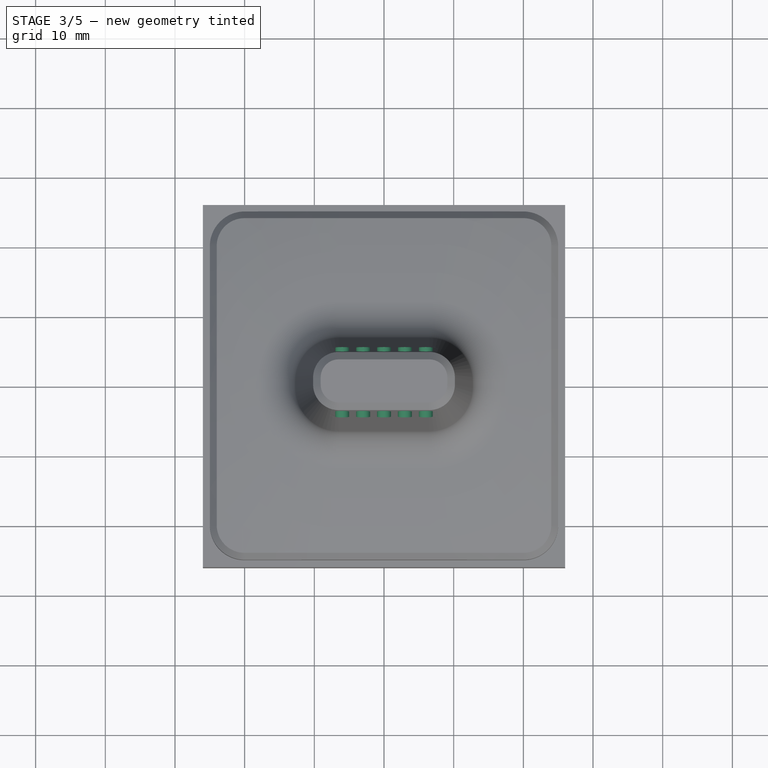
[diagram: stage 3 of 5 — top view after this stage's code; geometry added in this stage tinted green]
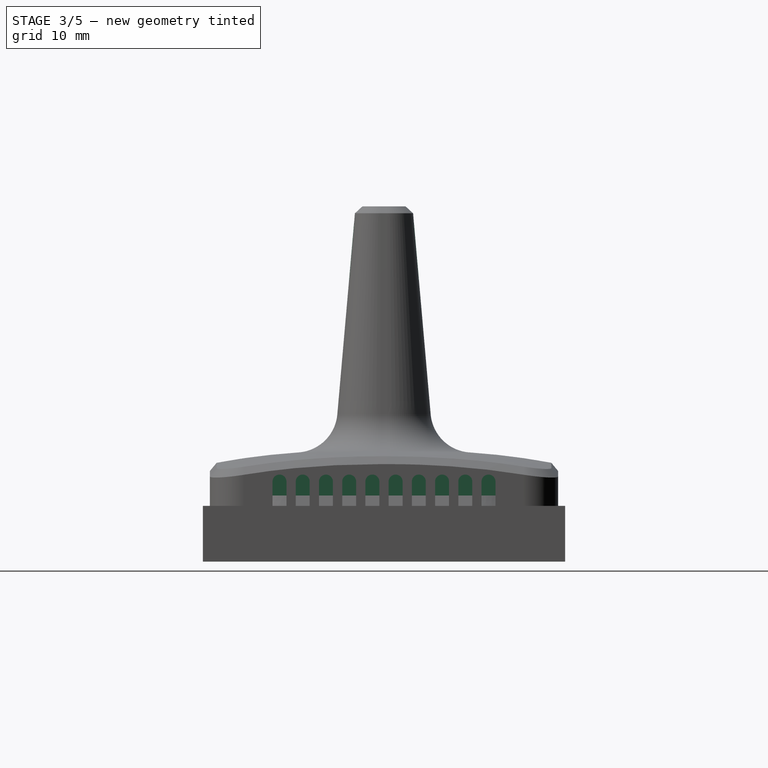
[diagram: stage 3 of 5 — right view after this stage's code; geometry added in this stage tinted green]
FEATURE [PartDesign::Pocket] Pocket012  label="HS Cutout ESP32"
  BaseFeature = -> Pocket011
  Direction = (0,0,-1)
  Length = 6
  Length2 = 5
  Placement = pos=(0,0,0) rot=(0.57735,0.57735,0.57735;2.0944rad)
  Profile = -> Sketch043
  ReferenceAxis = -> Sketch043 [N_Axis]
  Reversed = true
  Type = 0
FEATURE [PartDesign::Pocket] Pocket013  label="HS Slot for BME280"
  BaseFeature = -> Pocket012
  Direction = (0,0,-1)
  Length = 42
  Length2 = 5
  Placement = pos=(0,0,0) rot=(0.57735,0.57735,0.57735;2.0944rad)
  Profile = -> Sketch044
  ReferenceAxis = -> Sketch044 [N_Axis]
  Type = 0
FEATURE [PartDesign::Pocket] Pocket014  label="HS First vent opening BME280"
  BaseFeature = -> Pocket013
  Direction = (0,1,2e-16)
  Length = 5
  Length2 = 5
  Midplane = true
  Placement = pos=(0,0,0) rot=(0.57735,0.57735,0.57735;2.0944rad)
  Profile = -> Sketch045
  ReferenceAxis = -> Sketch045 [N_Axis]
  Type = 1
FEATURE [PartDesign::LinearPattern] LinearPattern001  label="HS Other vent openings BME280"
  BaseFeature = -> Pocket014
  Direction = -> Sketch045 [H_Axis]
  Length = 12
  Occurrences = 5
  Originals = -> [Pocket014]
  Placement = pos=(0,0,0) rot=(0.57735,0.57735,0.57735;2.0944rad)
FEATURE [PartDesign::Pocket] Pocket015  label="HS First vent opening ESP32 rear"
  BaseFeature = -> LinearPattern001
  Direction = (0,1,2e-16)
  Length = 5
  Length2 = 5
  Placement = pos=(0,0,0) rot=(0.57735,0.57735,0.57735;2.0944rad)
  Profile = -> Sketch046
  ReferenceAxis = -> Sketch046 [N_Axis]
  Type = 1
FEATURE [PartDesign::LinearPattern] LinearPattern002  label="HS Other vent openings ESP32 rear"
  BaseFeature = -> Pocket015
  Direction = -> Sketch046 [H_Axis]
  Length = 28
  Occurrences = 10
  Originals = -> [Pocket015]
  Placement = pos=(0,0,0) rot=(0.57735,0.57735,0.57735;2.0944rad)
FEATURE [PartDesign::Pocket] Pocket016  label="HS First vent opening ESP32 side"
  BaseFeature = -> LinearPattern002
  Direction = (-1,2e-16,-3e-16)
  Length = 5
  Length2 = 5
  Placement = pos=(0,0,0) rot=(0.57735,0.57735,0.57735;2.0944rad)
  Profile = -> Sketch047
  ReferenceAxis = -> Sketch047 [N_Axis]
  Reversed = true
  Type = 1
FEATURE [PartDesign::MultiTransform] MultiTransform  label="HS Other vent openings ESP32 side"
  BaseFeature = -> Pocket016
  Originals = -> [Pocket016]
  Placement = pos=(0,0,0) rot=(0.57735,0.57735,0.57735;2.0944rad)
  Transformations = -> [LinearPattern003,PolarPattern002]
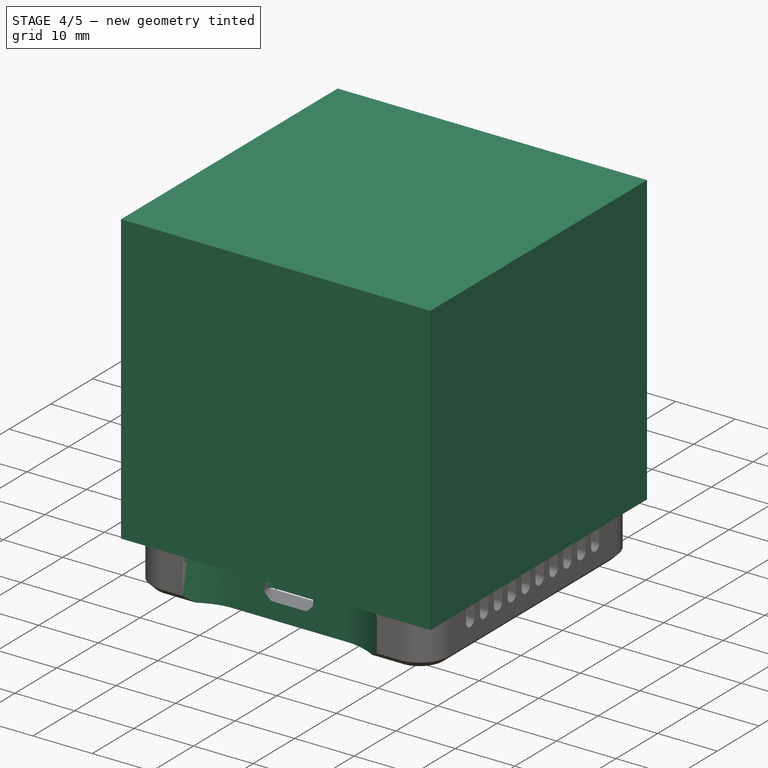
[diagram: stage 4 of 5 — iso view after this stage's code; geometry added in this stage tinted green]
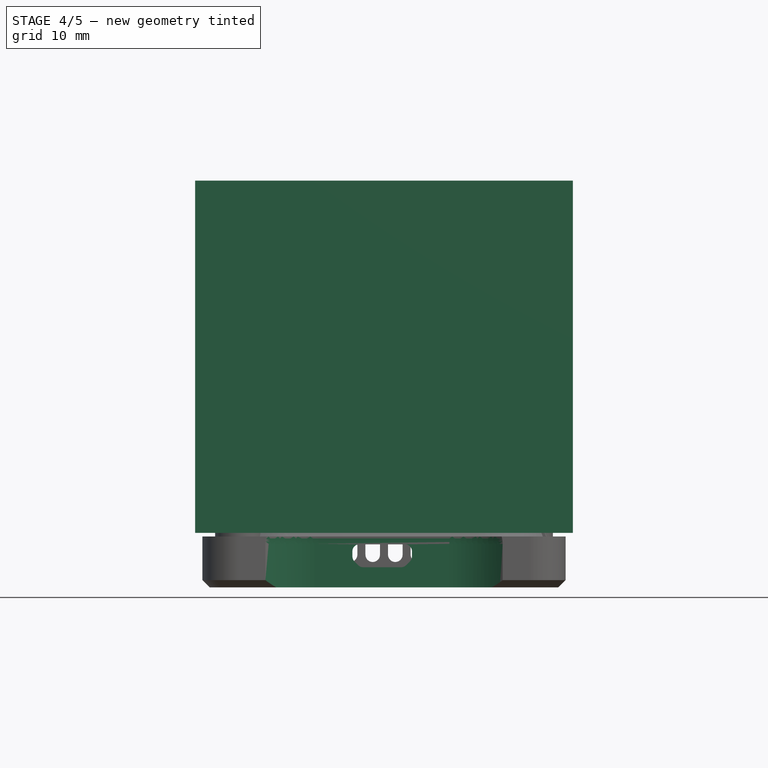
[diagram: stage 4 of 5 — front view after this stage's code; geometry added in this stage tinted green]
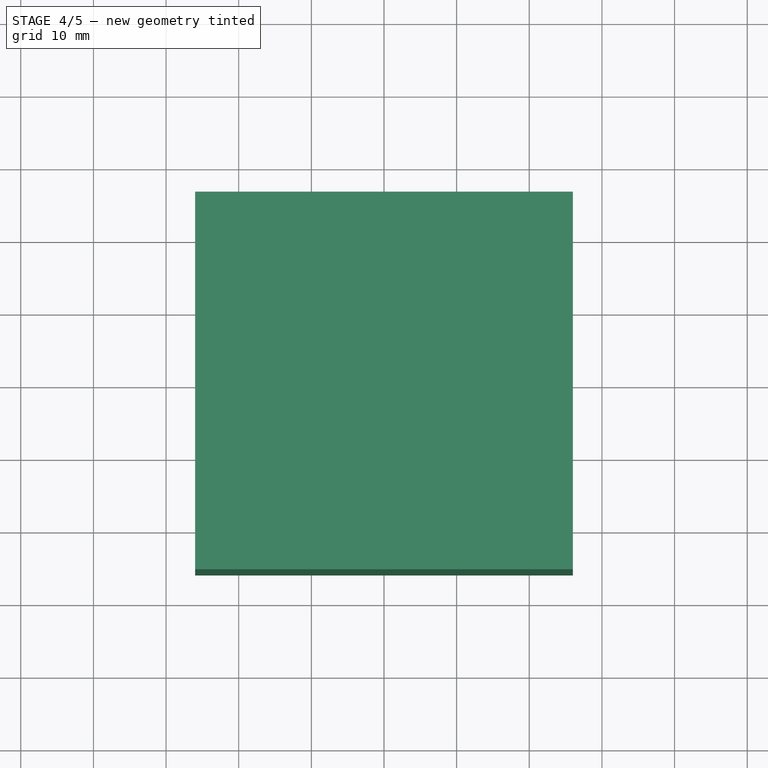
[diagram: stage 4 of 5 — top view after this stage's code; geometry added in this stage tinted green]
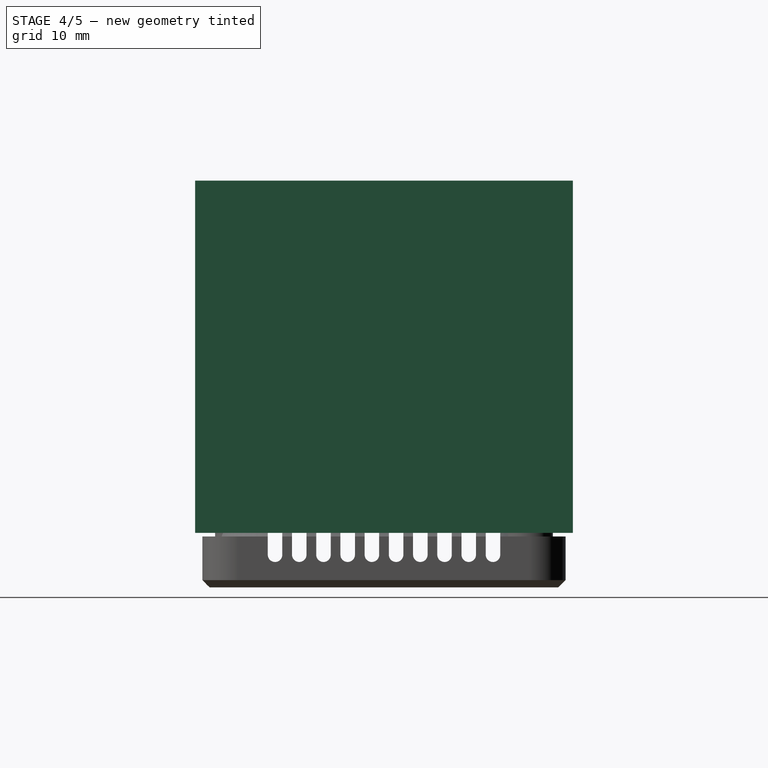
[diagram: stage 4 of 5 — right view after this stage's code; geometry added in this stage tinted green]
FEATURE [PartDesign::SubShapeBinder] Binder004  label="sb ref USB opening"
  BindCopyOnChange = 0
  BindMode = 0
  ClaimChildren = false
  Context = -> Body015 [Binder004.]
  Fuse = false
  MakeFace = true
  OffsetFill = false
  OffsetIntersection = false
  OffsetJoinType = 0
  OffsetOpenResult = false
  PartialLoad = false
  Relative = true
  Support = -> [Body014[Pocket011.Sketch042.]]
  _Version = 2
FEATURE [Sketcher::SketchObject] Sketch053  label="hs usb recess crs"
  FullyConstrained = true
  MapMode = 5
  Placement = pos=(0,0,0) rot=(0.57735,0.57735,0.57735;2.0944rad)
  Support = -> [YZ_Plane013]
  sketch-geometry (5):
    g0: LineSegment StartX=-22.5 StartY=5 StartZ=0 EndX=-22.5 EndY=-2 EndZ=0
    g1: LineSegment StartX=-22.5 StartY=-2 StartZ=0 EndX=-26 EndY=-2 EndZ=0
    g2: LineSegment StartX=-26 StartY=-2 StartZ=0 EndX=-26 EndY=10.6125 EndZ=0
    g3: ArcOfCircle CenterX=-28.75 CenterY=5 CenterZ=0 NormalX=0 NormalY=0 NormalZ=1 AngleXU=0 Radius=6.25 StartAngle=0 EndAngle=1.1152
    g4: GeomPoint X=-25 Y=10 Z=0
  constraints (14):
    c: Coincident(g0,g1)
    c: Coincident(g1,g2)
    c: Horizontal(g1)
    c: Vertical(g0)
    c: Vertical(g2)
    c: Tangent(g0,g3) = 1.5708
    c: DistanceY(g0) = 5
    c: DistanceX(g0,g-1) = 22.5
    c: Coincident(g2,g3)
    c: PointOnObject(g4,g3)
    c: DistanceX(g4,g-1) = 25
    c: DistanceY(g4) = 10
    c: DistanceX(g2,g4) = 1
    c: DistanceY(g0,g-1) = 2
FEATURE [Sketcher::SketchObject] Sketch054  label="hs usb recess trj"
  ExternalGeometry = -> [Sketch053]
  FullyConstrained = true
  MapMode = 5
  Support = -> [XY_Plane013]
  sketch-geometry (3):
    g0: LineSegment StartX=-9 StartY=-22.5 StartZ=0 EndX=9 EndY=-22.5 EndZ=0
    g1: ArcOfCircle CenterX=-9 CenterY=-34.5 CenterZ=0 NormalX=0 NormalY=0 NormalZ=1 AngleXU=0 Radius=12 StartAngle=1.5708 EndAngle=2.35446
    g2: ArcOfCircle CenterX=9 CenterY=-34.5 CenterZ=0 NormalX=0 NormalY=0 NormalZ=1 AngleXU=0 Radius=12 StartAngle=0.787134 EndAngle=1.5708
  constraints (9):
    c: Tangent(g0,g1) = 1.5708
    c: Tangent(g0,g2) = 1.5708
    c: PointOnObject(g-3,g0)
    c: DistanceY(g2,g-1) = 26
    c: DistanceX(g0,g0) = 18
    c: Symmetric(g2,g1,g-2)
    c: Horizontal(g2,g1)
    c: Radius(g2) = 12
    c: Horizontal(g0)
FEATURE [Sketcher::SketchObject] Sketch055  label="hs screw hole"
  AttachmentOffset = pos=(0,0,20) rot=(0,0,1;0rad)
  FullyConstrained = true
  MapMode = 5
  Placement = pos=(0,-20,-4.4e-15) rot=(1,0,0;1.5708rad)
  Support = -> [XZ_Plane014]
  sketch-geometry (7):
    g0: LineSegment StartX=-20 StartY=-0.7 StartZ=0 EndX=-20 EndY=13.8 EndZ=0
    g1: LineSegment StartX=-20 StartY=13.8 StartZ=0 EndX=-17.2 EndY=13.8 EndZ=0
    g2: LineSegment StartX=-17.2 StartY=13.8 StartZ=0 EndX=-17.2 EndY=11.6 EndZ=0
    g3: LineSegment StartX=-17.2 StartY=11.6 StartZ=0 EndX=-18 EndY=10.8 EndZ=0
    g4: LineSegment StartX=-18 StartY=10.8 StartZ=0 EndX=-19.65 EndY=-0.7 EndZ=0
    g5: LineSegment StartX=-19.65 StartY=-0.7 StartZ=0 EndX=-20 EndY=-0.7 EndZ=0
    g6: LineSegment StartX=-20 StartY=13.8 StartZ=0 EndX=-20 EndY=16.6 EndZ=0
  constraints (21):
    c: Vertical(g0)
    c: Coincident(g0,g1)
    c: Horizontal(g1)
    c: Coincident(g1,g2)
    c: Vertical(g2)
    c: Coincident(g2,g3)
    c: Coincident(g3,g4)
    c: Coincident(g4,g5)
    c: Coincident(g5,g0)
    c: Horizontal(g5)
    c: DistanceX(g5,g5) = 0.35
    c: DistanceX(g1,g1) = 2.8
    c: Angle(g0,g3) = 2.35619
    c: Distance(g3,g0) = 2
    c: DistanceY(g0,g-1) = 0.7
    c: DistanceY(g3) = 10.8
    c: DistanceY(g3,g1) = 3
    c: Coincident(g6,g0)
    c: Vertical(g6)
    c: Equal(g1,g6)
    c: DistanceX(g6,g-1) = 20
FEATURE [Sketcher::SketchObject] Sketch056  label="sb holes for screw head"
  AttachmentOffset = pos=(0,0,13) rot=(0,0,1;0rad)
  FullyConstrained = true
  MapMode = 5
  Placement = pos=(0,0,13) rot=(0,0,1;0rad)
  Support = -> [XY_Plane015]
  sketch-geometry (2):
    g0: Circle CenterX=-20 CenterY=-20 CenterZ=0 NormalX=0 NormalY=0 NormalZ=1 AngleXU=0 Radius=1.8
    g1: Circle CenterX=20 CenterY=20 CenterZ=0 NormalX=0 NormalY=0 NormalZ=1 AngleXU=0 Radius=1.8
  constraints (5):
    c: DistanceX(g0,g-1) = 20
    c: DistanceY(g0,g-1) = 20
    c: Diameter(g0) = 3.6
    c: Symmetric(g1,g0,g-1)
    c: Equal(g0,g1)
FEATURE [PartDesign::SubShapeBinder] Binder005  label="st ref separation bottom"
  BindCopyOnChange = 0
  BindMode = 0
  ClaimChildren = false
  Context = -> Body016 [Binder005.]
  Fuse = false
  MakeFace = true
  OffsetFill = false
  OffsetIntersection = false
  OffsetJoinType = 0
  OffsetOpenResult = false
  PartialLoad = false
  Relative = true
  Support = -> [Body015[Pad015.Sketch049.]]
  _Version = 2
FEATURE [Sketcher::SketchObject] Sketch057  label="st base"
  ExternalGeometry = -> [Binder005]
  FullyConstrained = true
  MapMode = 5
  Placement = pos=(0,0,0) rot=(0.57735,0.57735,0.57735;2.0944rad)
  Support = -> [YZ_Plane015]
  sketch-geometry (4):
    g0: LineSegment StartX=-26 StartY=55 StartZ=0 EndX=26 EndY=55 EndZ=0
    g1: LineSegment StartX=26 StartY=55 StartZ=0 EndX=26 EndY=6.5 EndZ=0
    g2: LineSegment StartX=26 StartY=6.5 StartZ=0 EndX=-26 EndY=6.5 EndZ=0
    g3: LineSegment StartX=-26 StartY=6.5 StartZ=0 EndX=-26 EndY=55 EndZ=0
  constraints (12):
    c: Coincident(g0,g1)
    c: Coincident(g1,g2)
    c: Coincident(g2,g3)
    c: Coincident(g3,g0)
    c: Horizontal(g0)
    c: Horizontal(g2)
    c: Vertical(g1)
    c: Vertical(g3)
    c: PointOnObject(g-3,g3)
    c: PointOnObject(g-3,g1)
    c: DistanceY(g-3,g1) = 0.5
    c: DistanceY(g0) = 55
FEATURE [PartDesign::Pad] Pad016  label="ST Base"
  Direction = (1,-2e-16,3e-16)
  Length = 52
  Length2 = 10
  Midplane = true
  Placement = pos=(0,0,0) rot=(0.57735,0.57735,0.57735;2.0944rad)
  Profile = -> Sketch057
  ReferenceAxis = -> Sketch057 [N_Axis]
  Type = 0
FEATURE [PartDesign::SubShapeBinder] Binder006  label="sf ref rim trj"
  BindCopyOnChange = 0
  BindMode = 0
  ClaimChildren = false
  Context = -> Body016 [Binder006.]
  Fuse = false
  MakeFace = true
  OffsetFill = false
  OffsetIntersection = false
  OffsetJoinType = 0
  OffsetOpenResult = false
  PartialLoad = false
  Relative = true
  Support = -> [Body015[AdditivePipe.Sketch050.]]
  _Version = 2
FEATURE [PartDesign::SubShapeBinder] Binder007  label="sf ref rim crs"
  BindCopyOnChange = 0
  BindMode = 0
  ClaimChildren = false
  Context = -> Body016 [Binder007.]
  Fuse = false
  MakeFace = true
  OffsetFill = false
  OffsetIntersection = false
  OffsetJoinType = 0
  OffsetOpenResult = false
  PartialLoad = false
  Relative = true
  Support = -> [Body015[AdditivePipe.Sketch051.]]
  _Version = 2
FEATURE [Sketcher::SketchObject] Sketch058  label="st groove trj"
  ExternalGeometry = -> [Binder006]
  FullyConstrained = true
  MapMode = 5
  Support = -> [XY_Plane015]
  sketch-geometry (10):
    g0: ArcOfCircle CenterX=13 CenterY=13 CenterZ=0 NormalX=0 NormalY=0 NormalZ=1 AngleXU=0 Radius=8 StartAngle=2e-16 EndAngle=1.5708
    g1: LineSegment StartX=21 StartY=13 StartZ=0 EndX=21 EndY=-13 EndZ=0
    g2: ArcOfCircle CenterX=13 CenterY=-13 CenterZ=0 NormalX=0 NormalY=0 NormalZ=1 AngleXU=0 Radius=8 StartAngle=4.71239 EndAngle=6.28319
    g3: LineSegment StartX=13 StartY=-21 StartZ=0 EndX=-13 EndY=-21 EndZ=0
    g4: ArcOfCircle CenterX=-13 CenterY=-13 CenterZ=0 NormalX=0 NormalY=0 NormalZ=1 AngleXU=0 Radius=8 StartAngle=3.14159 EndAngle=4.71239
    g5: LineSegment StartX=-21 StartY=-13 StartZ=0 EndX=-21 EndY=13 EndZ=0
    g6: ArcOfCircle CenterX=-13 CenterY=13 CenterZ=0 NormalX=0 NormalY=0 NormalZ=1 AngleXU=0 Radius=8 StartAngle=1.5708 EndAngle=3.14159
    g7: LineSegment StartX=-13 StartY=21 StartZ=0 EndX=13 EndY=21 EndZ=0
    g8: GeomPoint X=21 Y=21 Z=0
    g9: GeomPoint X=-21 Y=-21 Z=0
  constraints (22):
    c: Tangent(g0,g1) = 1.5708
    c: Tangent(g1,g2) = 1.5708
    c: Tangent(g2,g3) = 1.5708
    c: Tangent(g3,g4) = 1.5708
    c: Tangent(g4,g5) = 1.5708
    c: Tangent(g5,g6) = 1.5708
    c: Tangent(g6,g7) = 1.5708
    c: Tangent(g7,g0) = 1.5708
    c: Horizontal(g3)
    c: Horizontal(g7)
    c: Vertical(g1)
    c: Vertical(g5)
    c: Equal(g0,g2)
    c: Equal(g2,g4)
    c: Equal(g4,g6)
    c: PointOnObject(g8,g1)
    c: PointOnObject(g8,g7)
    c: PointOnObject(g9,g3)
    c: PointOnObject(g9,g5)
    c: Coincident(g4,g-3)
    c: Coincident(g-4,g0)
    c: Equal(g-4,g0)
FEATURE [Sketcher::SketchObject] Sketch059  label="st groove crs"
  ExternalGeometry = -> [Binder007,Sketch057]
  FullyConstrained = true
  MapMode = 5
  Placement = pos=(0,0,0) rot=(0.57735,0.57735,0.57735;2.0944rad)
  Support = -> [YZ_Plane015]
  sketch-geometry (5):
    g0: LineSegment StartX=-22.5173 StartY=6.5 StartZ=0 EndX=-21.75 EndY=7.5 EndZ=0
    g1: LineSegment StartX=-20.25 StartY=7.5 StartZ=0 EndX=-19.4827 EndY=6.5 EndZ=0
    g2: LineSegment StartX=-19.4827 StartY=6.5 StartZ=0 EndX=-22.5173 EndY=6.5 EndZ=0
    g3: LineSegment StartX=-21 StartY=7.86986 StartZ=0 EndX=-21 EndY=6.5 EndZ=0
    g4: ArcOfCircle CenterX=-21 CenterY=6.9245 CenterZ=0 NormalX=0 NormalY=0 NormalZ=1 AngleXU=0 Radius=0.945354 StartAngle=0.654498 EndAngle=2.48709
  constraints (12):
    c: Coincident(g1,g2)
    c: Coincident(g2,g0)
    c: PointOnObject(g3,g2)
    c: Symmetric(g-3,g-4,g3)
    c: Symmetric(g0,g1,g3)
    c: Tangent(g1,g4) = 1.5708
    c: Tangent(g0,g4) = 1.5708
    c: PointOnObject(g3,g4)
    c: PointOnObject(g4,g3)
    c: Coincident(g-4,g1)
    c: Angle(g-4,g1) = 0.261799
    c: PointOnObject(g0,g-5)
FEATURE [PartDesign::SubtractivePipe] SubtractivePipe001  label="ST Groove"
  AuxilleryCurvelinear = true
  AuxillerySpineTangent = false
  BaseFeature = -> Pad016
  Binormal = (0,0,0)
  Mode = 0
  Placement = pos=(0,0,0) rot=(0.57735,0.57735,0.57735;2.0944rad)
  Profile = -> Sketch059
  Spine = -> Sketch058
  SpineTangent = false
  Transformation = 0
  Transition = 0
FEATURE [PartDesign::Body] Body015  label="Separation bottom"
  Group = -> [Sketch049,Pad015,Sketch050,Sketch051,AdditivePipe,Binder004,Sketch062,Pad018]
  Origin = -> Origin014
  Tip = -> Pad018
FEATURE [PartDesign::Pocket] Pocket020  label="ST Screw holes"
  BaseFeature = -> SubtractivePipe001
  Direction = (0,0,-1)
  Length = 5
  Length2 = 5
  Placement = pos=(0,0,0) rot=(0.57735,0.57735,0.57735;2.0944rad)
  Profile = -> Sketch061
  ReferenceAxis = -> Sketch061 [N_Axis]
  Type = 1
FEATURE [PartDesign::SubtractivePipe] SubtractivePipe  label="HS USB Recess"
  AuxilleryCurvelinear = true
  AuxillerySpineTangent = false
  BaseFeature = -> MultiTransform
  Binormal = (0,0,0)
  Mode = 0
  Placement = pos=(0,0,0) rot=(0.57735,0.57735,0.57735;2.0944rad)
  Profile = -> Sketch053
  Spine = -> Sketch054
  SpineTangent = false
  Transformation = 0
  Transition = 0
FEATURE [PartDesign::Groove] Groove  label="HS Screw hole 1"
  Angle = 360
  Axis = (0,-6e-16,2.8)
  Base = (-20,-20,13.8)
  BaseFeature = -> SubtractivePipe
  Placement = pos=(0,0,0) rot=(0.57735,0.57735,0.57735;2.0944rad)
  Profile = -> Sketch055
  ReferenceAxis = -> Sketch055 [Axis0]
FEATURE [PartDesign::PolarPattern] PolarPattern003  label="HS Screw hole 2"
  Angle = 360
  Axis = -> Z_Axis013
  BaseFeature = -> Groove
  Occurrences = 2
  Originals = -> [Groove]
  Placement = pos=(0,0,0) rot=(0.57735,0.57735,0.57735;2.0944rad)
FEATURE [PartDesign::Pocket] Pocket019  label="HS First vent hole bottom"
  BaseFeature = -> PolarPattern003
  Direction = (0,0,-1)
  Length = 5
  Length2 = 5
  Placement = pos=(0,0,0) rot=(0.57735,0.57735,0.57735;2.0944rad)
  Profile = -> Sketch060
  ReferenceAxis = -> Sketch060 [N_Axis]
  Type = 1
FEATURE [PartDesign::LinearPattern] LinearPattern004  label="HS Other vent holes bottom"
  BaseFeature = -> Pocket019
  Direction = -> Y_Axis013
  Length = 30
  Occurrences = 10
  Originals = -> [Pocket019]
  Placement = pos=(0,0,0) rot=(0.57735,0.57735,0.57735;2.0944rad)
FEATURE [Part::MultiCommon] Common  label="Bottom housing"
  Shapes = -> [Body014,Body015]
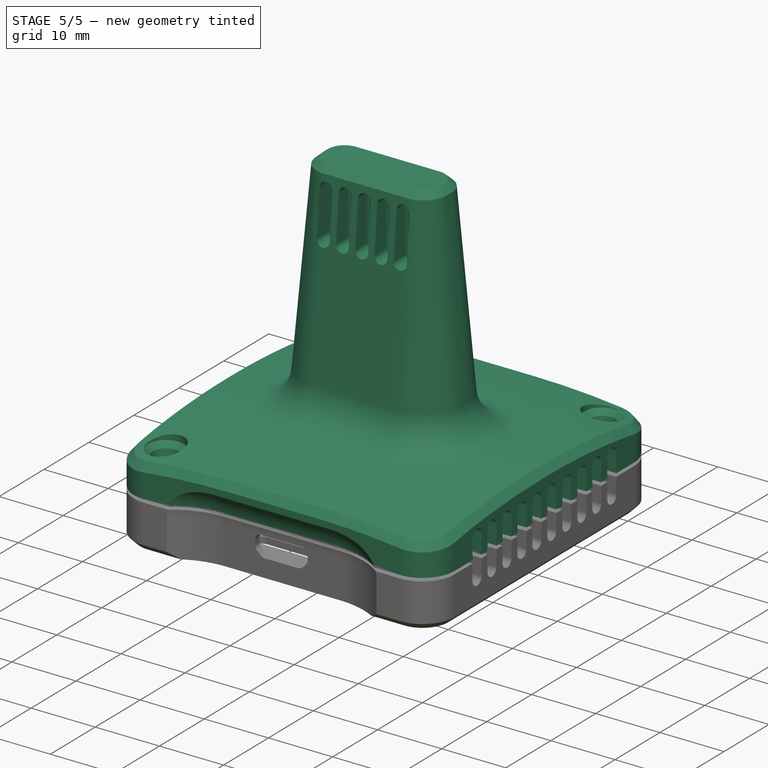
[diagram: stage 5 of 5 — iso view after this stage's code; geometry added in this stage tinted green]
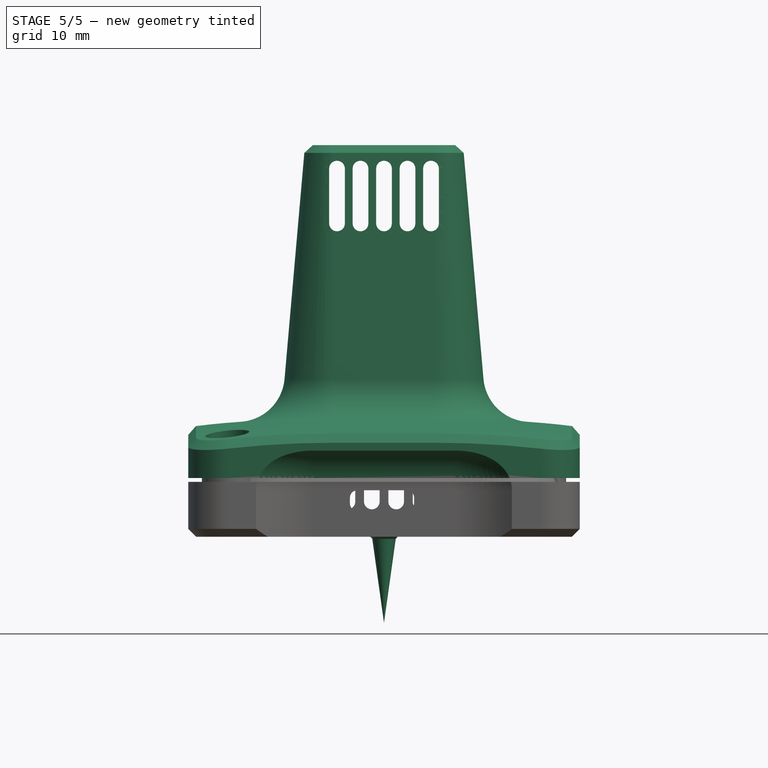
[diagram: stage 5 of 5 — front view after this stage's code; geometry added in this stage tinted green]
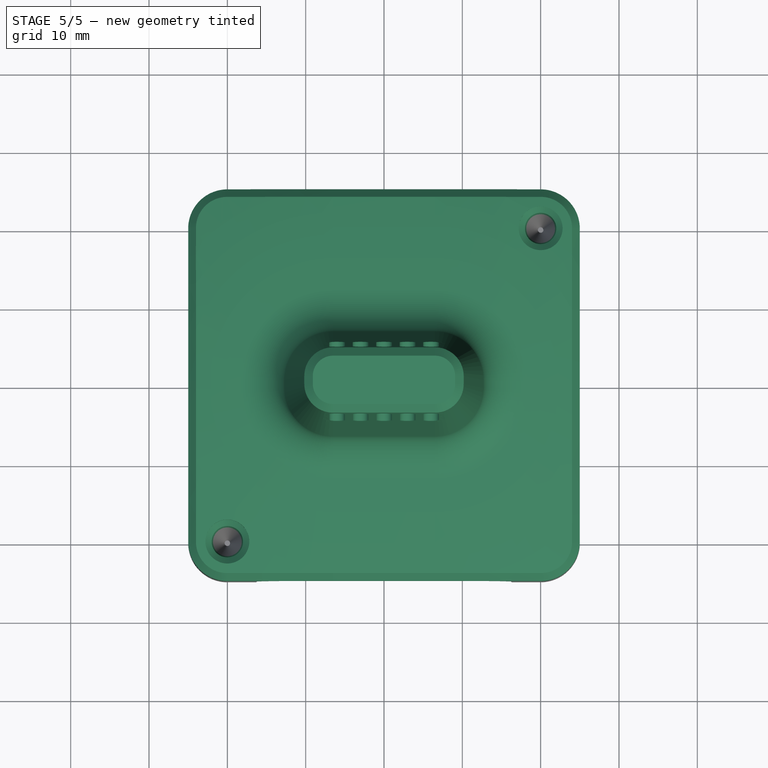
[diagram: stage 5 of 5 — top view after this stage's code; geometry added in this stage tinted green]
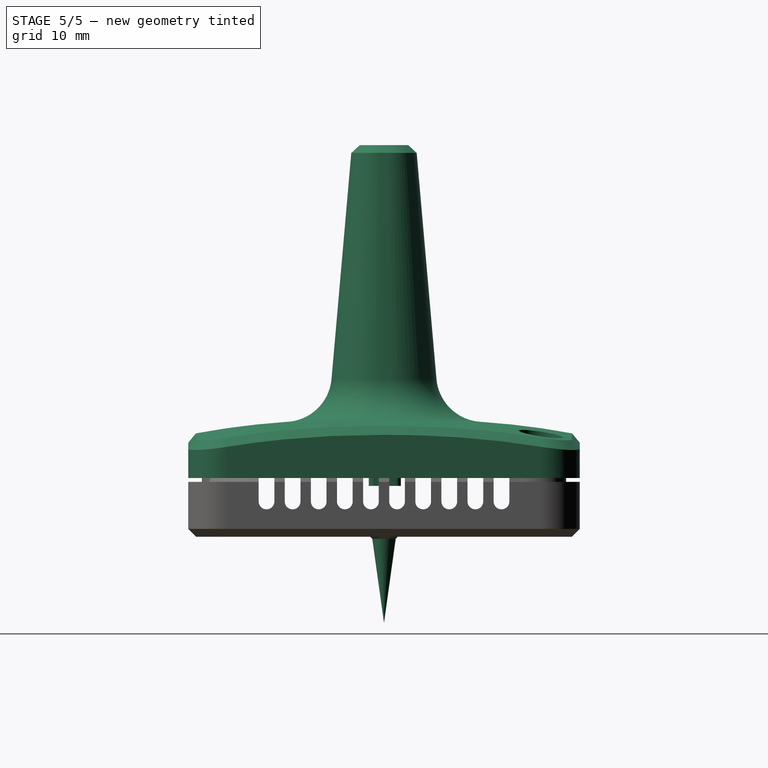
[diagram: stage 5 of 5 — right view after this stage's code; geometry added in this stage tinted green]
FEATURE [PartDesign::Body] Body010  label="Resistor6"
  Group = -> [Sketch012,Pad010]
  Tip = -> Pad010
FEATURE [App::Part] Part  label="BME280"
  Group = -> [Body001,Body002,Body003,Body006,Body007,Body008,Body009,Body010]
  Origin = -> Origin009
  Placement = pos=(0,1.5,41) rot=(1,0,0;1.5708rad)
FEATURE [Sketcher::SketchObject] Sketch013
  FullyConstrained = true
  MapMode = 5
  Placement = pos=(0,0,0) rot=(1,0,0;1.5708rad)
  Support = -> [XZ_Plane010]
  sketch-geometry (5):
    g0: LineSegment StartX=0 StartY=0 StartZ=0 EndX=0 EndY=-12 EndZ=0
    g1: LineSegment StartX=0 StartY=-12 StartZ=0 EndX=1.5 EndY=-1.25 EndZ=0
    g2: LineSegment StartX=1.5 StartY=-1.25 StartZ=0 EndX=2.65 EndY=-0.1 EndZ=0
    g3: LineSegment StartX=2.65 StartY=0 StartZ=0 EndX=0 EndY=0 EndZ=0
    g4: LineSegment StartX=2.65 StartY=-0.1 StartZ=0 EndX=2.65 EndY=0 EndZ=0
  constraints (14):
    c: Coincident(g-1,g0)
    c: Vertical(g0)
    c: Coincident(g0,g1)
    c: Coincident(g1,g2)
    c: Coincident(g3,g0)
    c: DistanceY(g0,g0) = 12
    c: Angle(g3,g2) = 0.785398
    c: DistanceX(g0,g1) = 1.5
    c: Horizontal(g3)
    c: Coincident(g4,g2)
    c: Vertical(g4)
    c: Coincident(g3,g4)
    c: DistanceX(g3) = 2.65
    c: DistanceY(g4,g4) = 0.1
FEATURE [PartDesign::Revolution] Revolution
  AllowMultiFace = false
  Angle = 360
  Axis = (-3e-16,3e-16,1)
  Base = (0,0,0)
  Placement = pos=(0,0,0) rot=(1,0,0;1.5708rad)
  Profile = -> Sketch013
  ReferenceAxis = -> Z_Axis010
  Reversed = true
FEATURE [Sketcher::SketchObject] Sketch014
  FullyConstrained = false
  MapMode = 5
  Placement = pos=(0,0,0) rot=(1,0,0;1.5708rad)
  Support = -> [XZ_Plane010]
  sketch-geometry (3):
    g0: LineSegment StartX=-2 StartY=0 StartZ=0 EndX=0 EndY=-2 EndZ=0
    g1: LineSegment StartX=0 StartY=-2 StartZ=0 EndX=2 EndY=0 EndZ=0
    g2: LineSegment StartX=2 StartY=0 StartZ=0 EndX=-2 EndY=0 EndZ=0
  constraints (9):
    c: PointOnObject(g0,g-1)
    c: Coincident(g0,g1)
    c: PointOnObject(g1,g-1)
    c: Coincident(g1,g2)
    c: Coincident(g2,g0)
    c: PointOnObject(g0,g-2)
    c: Equal(g1,g0)
    c: Perpendicular(g0,g1)
    c: DistanceX(g2,g2) = 4
FEATURE [PartDesign::Pocket] Pocket001  label="Pocket"
  AllowMultiFace = false
  BaseFeature = -> Revolution
  Direction = (0,1,2e-16)
  Length = 0.6
  Length2 = 100
  Midplane = true
  Placement = pos=(0,0,0) rot=(1,0,0;1.5708rad)
  Profile = -> Sketch014
  Type = 0
FEATURE [PartDesign::PolarPattern] PolarPattern
  Angle = 90
  Axis = -> Z_Axis010
  BaseFeature = -> Pocket001
  Occurrences = 2
  Originals = -> [Pocket001]
  Placement = pos=(0,0,0) rot=(1,0,0;1.5708rad)
FEATURE [PartDesign::Body] Body011  label="SelftappingScrew3.0x12_01"
  Group = -> [Sketch013,Revolution,Sketch014,Pocket001,PolarPattern]
  Origin = -> Origin010
  Placement = pos=(20,20,11.5) rot=(0,0,1;0rad)
  Tip = -> PolarPattern
FEATURE [Sketcher::SketchObject] Sketch015
  FullyConstrained = true
  MapMode = 5
  Placement = pos=(0,0,0) rot=(1,0,0;1.5708rad)
  sketch-geometry (5):
    g0: LineSegment StartX=0 StartY=0 StartZ=0 EndX=0 EndY=-12 EndZ=0
    g1: LineSegment StartX=0 StartY=-12 StartZ=0 EndX=1.5 EndY=-1.25 EndZ=0
    g2: LineSegment StartX=1.5 StartY=-1.25 StartZ=0 EndX=2.65 EndY=-0.1 EndZ=0
    g3: LineSegment StartX=2.65 StartY=0 StartZ=0 EndX=0 EndY=0 EndZ=0
    g4: LineSegment StartX=2.65 StartY=-0.1 StartZ=0 EndX=2.65 EndY=0 EndZ=0
  constraints (14):
    c: Coincident(g-1,g0)
    c: Vertical(g0)
    c: Coincident(g0,g1)
    c: Coincident(g1,g2)
    c: Coincident(g3,g0)
    c: DistanceY(g0,g0) = 12
    c: Angle(g3,g2) = 0.785398
    c: DistanceX(g0,g1) = 1.5
    c: Horizontal(g3)
    c: Coincident(g4,g2)
    c: Vertical(g4)
    c: Coincident(g3,g4)
    c: DistanceX(g3) = 2.65
    c: DistanceY(g4,g4) = 0.1
FEATURE [PartDesign::Revolution] Revolution001
  AllowMultiFace = false
  Angle = 360
  Axis = (-3e-16,3e-16,1)
  Base = (0,0,0)
  Placement = pos=(0,0,0) rot=(1,0,0;1.5708rad)
  Profile = -> Sketch015
  ReferenceAxis = -> Z_Axis011
  Reversed = true
FEATURE [Sketcher::SketchObject] Sketch016
  FullyConstrained = false
  MapMode = 5
  Placement = pos=(0,0,0) rot=(1,0,0;1.5708rad)
  Support = -> [XZ_Plane011]
  sketch-geometry (3):
    g0: LineSegment StartX=-2 StartY=0 StartZ=0 EndX=0 EndY=-2 EndZ=0
    g1: LineSegment StartX=0 StartY=-2 StartZ=0 EndX=2 EndY=0 EndZ=0
    g2: LineSegment StartX=2 StartY=0 StartZ=0 EndX=-2 EndY=0 EndZ=0
  constraints (9):
    c: PointOnObject(g0,g-1)
    c: Coincident(g0,g1)
    c: PointOnObject(g1,g-1)
    c: Coincident(g1,g2)
    c: Coincident(g2,g0)
    c: PointOnObject(g0,g-2)
    c: Equal(g1,g0)
    c: Perpendicular(g0,g1)
    c: DistanceX(g2,g2) = 4
FEATURE [PartDesign::Pocket] Pocket002
  AllowMultiFace = false
  BaseFeature = -> Revolution001
  Direction = (0,1,2e-16)
  Length = 0.6
  Length2 = 100
  Midplane = true
  Placement = pos=(0,0,0) rot=(1,0,0;1.5708rad)
  Profile = -> Sketch016
  Type = 0
FEATURE [PartDesign::PolarPattern] PolarPattern001
  Angle = 90
  Axis = -> Z_Axis011
  BaseFeature = -> Pocket002
  Occurrences = 2
  Originals = -> [Pocket002]
  Placement = pos=(0,0,0) rot=(1,0,0;1.5708rad)
FEATURE [Sketcher::SketchObject] Sketch041  label="hs cutout crs"
  FullyConstrained = true
  MapMode = 5
  Placement = pos=(0,0,0) rot=(1,0,0;1.5708rad)
  Support = -> [XZ_Plane014]
  sketch-geometry (7):
    g0: LineSegment StartX=40 StartY=50 StartZ=0 EndX=10 EndY=50 EndZ=0
    g1: LineSegment StartX=10 StartY=50 StartZ=0 EndX=12.6996 EndY=19.143 EndZ=0
    g2: LineSegment StartX=40 StartY=9.78304 StartZ=0 EndX=40 EndY=50 EndZ=0
    g3: ArcOfCircle CenterX=18.6768 CenterY=19.6659 CenterZ=0 NormalX=0 NormalY=0 NormalZ=1 AngleXU=0 Radius=6 StartAngle=3.22886 EndAngle=4.6455
    g4: GeomPoint X=25 Y=13 Z=0
    g5: ArcOfCircle CenterX=11.5922 CenterY=-86.0971 CenterZ=0 NormalX=0 NormalY=0 NormalZ=1 AngleXU=0 Radius=100 StartAngle=1.28275 EndAngle=1.50391
    g6: GeomPoint X=28.284 Y=12.5 Z=0
  constraints (19):
    c: Coincident(g0,g1)
    c: Coincident(g2,g0)
    c: Horizontal(g0)
    c: Vertical(g2)
    c: DistanceX(g2) = 40
    c: DistanceY(g0) = 50
    c: Tangent(g1,g3) = -1.5708
    c: Radius(g3) = 6
    c: Angle(g2,g1) = 0.0872665
    c: DistanceX(g0) = 10
    c: DistanceX(g4) = 25
    c: DistanceY(g4) = 13
    c: Tangent(g3,g5) = 1.5708
    c: Coincident(g2,g5)
    c: PointOnObject(g4,g5)
    c: Radius(g5) = 100
    c: PointOnObject(g6,g5)
    c: DistanceX(g6) = 28.284
    c: DistanceY(g6) = 12.5
FEATURE [PartDesign::SubShapeBinder] Binder  label="hs ref USB port"
  BindCopyOnChange = 0
  BindMode = 0
  ClaimChildren = false
  Context = -> Body014 [Binder.]
  Fuse = false
  MakeFace = true
  OffsetFill = false
  OffsetIntersection = false
  OffsetJoinType = 0
  OffsetOpenResult = false
  PartialLoad = false
  Relative = true
  Support = -> [Part__Feature[Edge4938,Edge4871,Edge4862,Edge4909,Edge4904,Edge4948]]
  _Version = 2
FEATURE [Sketcher::SketchObject] Sketch042  label="hs cutout USB port"
  ExternalGeometry = -> [Binder]
  FullyConstrained = true
  MapMode = 5
  Placement = pos=(0,0,0) rot=(1,0,0;1.5708rad)
  Support = -> [XZ_Plane014]
  sketch-geometry (13):
    g0: LineSegment StartX=2.9 StartY=4.93 StartZ=0 EndX=-3.4 EndY=4.93 EndZ=0
    g1: LineSegment StartX=-4.35 StartY=3.98 StartZ=0 EndX=-4.35 EndY=3.26136 EndZ=0
    g2: LineSegment StartX=-4.07175 StartY=2.58961 StartZ=0 EndX=-3.54038 EndY=2.05824 EndZ=0
    g3: LineSegment StartX=-2.86863 StartY=1.77999 StartZ=0 EndX=2.36863 EndY=1.77999 EndZ=0
    g4: LineSegment StartX=3.04038 StartY=2.05824 StartZ=0 EndX=3.57175 EndY=2.58961 EndZ=0
    g5: LineSegment StartX=3.85 StartY=3.26136 StartZ=0 EndX=3.85 EndY=3.98 EndZ=0
    g6: ArcOfCircle CenterX=2.9 CenterY=3.98 CenterZ=0 NormalX=0 NormalY=0 NormalZ=1 AngleXU=0 Radius=0.95 StartAngle=2.12e-14 EndAngle=1.5708
    g7: ArcOfCircle CenterX=-3.4 CenterY=3.98 CenterZ=0 NormalX=0 NormalY=0 NormalZ=1 AngleXU=0 Radius=0.95 StartAngle=1.5708 EndAngle=3.14159
    g8: ArcOfCircle CenterX=-3.4 CenterY=3.26136 CenterZ=0 NormalX=0 NormalY=0 NormalZ=1 AngleXU=0 Radius=0.95 StartAngle=3.14159 EndAngle=3.92699
    g9: ArcOfCircle CenterX=-2.86863 CenterY=2.72999 CenterZ=0 NormalX=0 NormalY=0 NormalZ=1 AngleXU=0 Radius=0.95 StartAngle=3.92699 EndAngle=4.71239
    g10: ArcOfCircle CenterX=2.36863 CenterY=2.72999 CenterZ=0 NormalX=0 NormalY=0 NormalZ=1 AngleXU=0 Radius=0.95 StartAngle=4.71239 EndAngle=5.49779
    g11: ArcOfCircle CenterX=2.9 CenterY=3.26136 CenterZ=0 NormalX=0 NormalY=0 NormalZ=1 AngleXU=0 Radius=0.95 StartAngle=5.49779 EndAngle=6.28319
    g12: LineSegment StartX=2.79289 StartY=2.30573 StartZ=0 EndX=3.32426 EndY=2.8371 EndZ=0
  constraints (26):
    c: Horizontal(g0)
    c: Vertical(g1)
    c: Horizontal(g3)
    c: Vertical(g5)
    c: Tangent(g5,g6) = -1.5708
    c: Tangent(g0,g6) = -1.5708
    c: Tangent(g0,g7) = -1.5708
    c: Tangent(g1,g7) = -1.5708
    c: Tangent(g1,g8) = -1.5708
    c: Tangent(g2,g8) = -1.5708
    c: Tangent(g2,g9) = -1.5708
    c: Tangent(g3,g9) = -1.5708
    c: Tangent(g3,g10) = -1.5708
    c: Tangent(g4,g10) = -1.5708
    c: Tangent(g4,g11) = -1.5708
    c: Tangent(g5,g11) = -1.5708
    c: Coincident(g6,g-5)
    c: Coincident(g7,g-6)
    c: Coincident(g8,g-7)
    c: Coincident(g9,g-8)
    c: Coincident(g10,g-3)
    c: Coincident(g11,g-4)
    c: Coincident(g12,g-3)
    c: Coincident(g12,g-4)
    c: Parallel(g4,g12)
    c: Distance(g-5,g0) = 0.35
FEATURE [PartDesign::SubShapeBinder] Binder001  label="hs ref ESP pcb"
  BindCopyOnChange = 0
  BindMode = 0
  ClaimChildren = false
  Context = -> Body014 [Binder001.]
  Fuse = false
  MakeFace = true
  OffsetFill = false
  OffsetIntersection = false
  OffsetJoinType = 0
  OffsetOpenResult = false
  PartialLoad = false
  Relative = true
  Support = -> [Part__Feature[Edge392,Edge351,Edge390,Edge388,Edge341]]
  _Version = 2
FEATURE [Sketcher::SketchObject] Sketch043  label="hs cutout ESP32"
  ExternalGeometry = -> [Binder001]
  FullyConstrained = true
  MapMode = 5
  Support = -> [XY_Plane013]
  sketch-geometry (10):
    g0: ArcOfCircle CenterX=-15.5 CenterY=18 CenterZ=0 NormalX=0 NormalY=0 NormalZ=1 AngleXU=0 Radius=0.5 StartAngle=1.5708 EndAngle=3.14159
    g1: LineSegment StartX=-15.5 StartY=18.5 StartZ=0 EndX=15.5 EndY=18.5 EndZ=0
    g2: ArcOfCircle CenterX=15.5 CenterY=18 CenterZ=0 NormalX=0 NormalY=0 NormalZ=1 AngleXU=0 Radius=0.5 StartAngle=-2.7e-15 EndAngle=1.5708
    g3: LineSegment StartX=16 StartY=18 StartZ=0 EndX=16 EndY=-21 EndZ=0
    g4: ArcOfCircle CenterX=15.5 CenterY=-21 CenterZ=0 NormalX=0 NormalY=0 NormalZ=1 AngleXU=0 Radius=0.5 StartAngle=4.71239 EndAngle=6.28319
    g5: LineSegment StartX=15.5 StartY=-21.5 StartZ=0 EndX=-15.5 EndY=-21.5 EndZ=0
    g6: ArcOfCircle CenterX=-15.5 CenterY=-21 CenterZ=0 NormalX=0 NormalY=0 NormalZ=1 AngleXU=0 Radius=0.5 StartAngle=3.14159 EndAngle=4.71239
    g7: LineSegment StartX=-16 StartY=-21 StartZ=0 EndX=-16 EndY=18 EndZ=0
    g8: GeomPoint X=-16 Y=18.5 Z=0
    g9: GeomPoint X=16 Y=-21.5 Z=0
  constraints (25):
    c: Tangent(g0,g1) = 1.5708
    c: Tangent(g1,g2) = 1.5708
    c: Tangent(g2,g3) = 1.5708
    c: Tangent(g3,g4) = 1.5708
    c: Tangent(g4,g5) = 1.5708
    c: Tangent(g5,g6) = 1.5708
    c: Tangent(g6,g7) = 1.5708
    c: Tangent(g7,g0) = 1.5708
    c: Horizontal(g1)
    c: Horizontal(g5)
    c: Vertical(g3)
    c: Vertical(g7)
    c: Equal(g0,g2)
    c: Equal(g2,g4)
    c: Equal(g4,g6)
    c: PointOnObject(g8,g1)
    c: PointOnObject(g8,g7)
    c: PointOnObject(g9,g3)
    c: PointOnObject(g9,g5)
    c: Coincident(g4,g-3)
    c: PointOnObject(g0,g-4)
    c: PointOnObject(g0,g-5)
    c: Radius(g2) = 0.5
    c: DistanceY(g4,g1) = 40
    c: DistanceX(g0,g2) = 32
FEATURE [PartDesign::SubShapeBinder] Binder002  label="hs ref BME280"
  BindCopyOnChange = 0
  BindMode = 0
  ClaimChildren = false
  Context = -> Body014 [Binder002.]
  Fuse = false
  MakeFace = true
  OffsetFill = false
  OffsetIntersection = false
  OffsetJoinType = 0
  OffsetOpenResult = false
  PartialLoad = false
  Relative = true
  Support = -> [Part[Body001.LinearPattern.Edge3,Body001.LinearPattern.Edge4,Body002.Pad002.Edge4]]
  _Version = 2
FEATURE [Sketcher::SketchObject] Sketch044  label="hs slot for BME280"
  AttachmentOffset = pos=(0,0,47) rot=(0,0,1;0rad)
  ExternalGeometry = -> [Binder002]
  FullyConstrained = true
  MapMode = 5
  Placement = pos=(0,0,47) rot=(0,0,1;0rad)
  Support = -> [XY_Plane013]
  sketch-geometry (10):
    g0: ArcOfCircle CenterX=-7.65 CenterY=1.5 CenterZ=0 NormalX=0 NormalY=0 NormalZ=1 AngleXU=0 Radius=1 StartAngle=1.5708 EndAngle=3.14159
    g1: LineSegment StartX=-7.65 StartY=2.5 StartZ=0 EndX=7.65 EndY=2.5 EndZ=0
    g2: ArcOfCircle CenterX=7.65 CenterY=1.5 CenterZ=0 NormalX=0 NormalY=0 NormalZ=1 AngleXU=0 Radius=1 StartAngle=1e-16 EndAngle=1.5708
    g3: LineSegment StartX=8.65 StartY=1.5 StartZ=0 EndX=8.65 EndY=-1.3 EndZ=0
    g4: ArcOfCircle CenterX=7.65 CenterY=-1.3 CenterZ=0 NormalX=0 NormalY=0 NormalZ=1 AngleXU=0 Radius=1 StartAngle=4.71239 EndAngle=6.28319
    g5: LineSegment StartX=7.65 StartY=-2.3 StartZ=0 EndX=-7.65 EndY=-2.3 EndZ=0
    g6: ArcOfCircle CenterX=-7.65 CenterY=-1.3 CenterZ=0 NormalX=0 NormalY=0 NormalZ=1 AngleXU=0 Radius=1 StartAngle=3.14159 EndAngle=4.71239
    g7: LineSegment StartX=-8.65 StartY=-1.3 StartZ=0 EndX=-8.65 EndY=1.5 EndZ=0
    g8: GeomPoint X=-8.65 Y=2.5 Z=0
    g9: GeomPoint X=8.65 Y=-2.3 Z=0
  constraints (23):
    c: Tangent(g0,g1) = 1.5708
    c: Tangent(g1,g2) = 1.5708
    c: Tangent(g2,g3) = 1.5708
    c: Tangent(g3,g4) = 1.5708
    c: Tangent(g4,g5) = 1.5708
    c: Tangent(g5,g6) = 1.5708
    c: Tangent(g6,g7) = 1.5708
    c: Tangent(g7,g0) = 1.5708
    c: Horizontal(g1)
    c: Horizontal(g5)
    c: Vertical(g3)
    c: Vertical(g7)
    c: Equal(g0,g2)
    c: Equal(g2,g4)
    c: Equal(g4,g6)
    c: PointOnObject(g8,g1)
    c: PointOnObject(g8,g7)
    c: PointOnObject(g9,g3)
    c: PointOnObject(g9,g5)
    c: Coincident(g-3,g0)
    c: PointOnObject(g4,g-4)
    c: Vertical(g2,g-3)
    c: Radius(g2) = 1
FEATURE [Sketcher::SketchObject] Sketch045  label="hs vent opening BME280"
  FullyConstrained = true
  MapMode = 5
  Placement = pos=(0,0,0) rot=(1,0,0;1.5708rad)
  Support = -> [XZ_Plane014]
  sketch-geometry (4):
    g0: ArcOfCircle CenterX=-6 CenterY=46 CenterZ=0 NormalX=0 NormalY=0 NormalZ=1 AngleXU=0 Radius=1 StartAngle=3.5e-15 EndAngle=3.14159
    g1: ArcOfCircle CenterX=-6 CenterY=39 CenterZ=0 NormalX=0 NormalY=0 NormalZ=1 AngleXU=0 Radius=1 StartAngle=3.14159 EndAngle=6.28319
    g2: LineSegment StartX=-7 StartY=46 StartZ=0 EndX=-7 EndY=39 EndZ=0
    g3: LineSegment StartX=-5 StartY=39 StartZ=0 EndX=-5 EndY=46 EndZ=0
  constraints (10):
    c: Tangent(g0,g2) = -1.5708
    c: Tangent(g2,g1) = -1.5708
    c: Tangent(g1,g3) = -1.5708
    c: Tangent(g3,g0) = -1.5708
    c: Equal(g0,g1)
    c: Vertical(g2)
    c: DistanceX(g0,g0) = 2
    c: DistanceX(g0,g-1) = 6
    c: DistanceY(g1) = 39
    c: DistanceY(g0) = 46
FEATURE [Sketcher::SketchObject] Sketch046  label="hs vent opening esp rear"
  AttachmentOffset = pos=(0,0,-16) rot=(0,0,1;0rad)
  FullyConstrained = true
  MapMode = 5
  Placement = pos=(0,16,3.6e-15) rot=(1,0,0;1.5708rad)
  Support = -> [XZ_Plane014]
  sketch-geometry (4):
    g0: ArcOfCircle CenterX=-14 CenterY=9.5 CenterZ=0 NormalX=0 NormalY=0 NormalZ=1 AngleXU=0 Radius=1 StartAngle=0 EndAngle=3.14159
    g1: ArcOfCircle CenterX=-14 CenterY=3.5 CenterZ=0 NormalX=0 NormalY=0 NormalZ=1 AngleXU=0 Radius=1 StartAngle=3.14159 EndAngle=6.28319
    g2: LineSegment StartX=-15 StartY=9.5 StartZ=0 EndX=-15 EndY=3.5 EndZ=0
    g3: LineSegment StartX=-13 StartY=3.5 StartZ=0 EndX=-13 EndY=9.5 EndZ=0
  constraints (10):
    c: Tangent(g0,g2) = -1.5708
    c: Tangent(g2,g1) = -1.5708
    c: Tangent(g1,g3) = -1.5708
    c: Tangent(g3,g0) = -1.5708
    c: Equal(g0,g1)
    c: Diameter(g0) = 2
    c: Vertical(g3)
    c: DistanceX(g1,g-1) = 14
    c: DistanceY(g1) = 3.5
    c: DistanceY(g2,g2) = 6
FEATURE [Sketcher::SketchObject] Sketch047  label="hs vent opening esp side"
  AttachmentOffset = pos=(0,0,13) rot=(0,0,1;0rad)
  FullyConstrained = true
  MapMode = 5
  Placement = pos=(13,-2.9e-15,2.9e-15) rot=(0.57735,0.57735,0.57735;2.0944rad)
  Support = -> [YZ_Plane013]
  sketch-geometry (4):
    g0: ArcOfCircle CenterX=-15 CenterY=9.5 CenterZ=0 NormalX=0 NormalY=0 NormalZ=1 AngleXU=0 Radius=1 StartAngle=0 EndAngle=3.14159
    g1: ArcOfCircle CenterX=-15 CenterY=3.5 CenterZ=0 NormalX=0 NormalY=0 NormalZ=1 AngleXU=0 Radius=1 StartAngle=3.14159 EndAngle=6.28319
    g2: LineSegment StartX=-16 StartY=9.5 StartZ=0 EndX=-16 EndY=3.5 EndZ=0
    g3: LineSegment StartX=-14 StartY=3.5 StartZ=0 EndX=-14 EndY=9.5 EndZ=0
  constraints (10):
    c: Tangent(g0,g2) = -1.5708
    c: Tangent(g2,g1) = -1.5708
    c: Tangent(g1,g3) = -1.5708
    c: Tangent(g3,g0) = -1.5708
    c: Equal(g0,g1)
    c: Vertical(g2)
    c: Diameter(g0) = 2
    c: DistanceY(g1) = 3.5
    c: DistanceX(g1,g-1) = 15
    c: DistanceY(g2,g2) = 6
FEATURE [PartDesign::Plane] DatumPlane
  AttachmentOffset = pos=(0,0,2.5) rot=(0,0,1;0rad)
  Length = 60
  MapMode = 5
  Placement = pos=(0,0,2.5) rot=(0,0,1;0rad)
  ResizeMode = 0
  Support = -> [XY_Plane013]
  Width = 60
FEATURE [PartDesign::LinearPattern] LinearPattern003
  Direction = -> Y_Axis013
  Length = 30
  Occurrences = 10
  Placement = pos=(0,0,0) rot=(0.57735,0.57735,0.57735;2.0944rad)
FEATURE [PartDesign::PolarPattern] PolarPattern002
  Angle = 360
  Axis = -> Z_Axis013
  Occurrences = 2
  Placement = pos=(0,0,0) rot=(0.57735,0.57735,0.57735;2.0944rad)
FEATURE [PartDesign::SubShapeBinder] Binder003  label="sp slot for BME280"
  BindCopyOnChange = 0
  BindMode = 0
  ClaimChildren = false
  Context = -> Body [Binder003.]
  Fuse = false
  MakeFace = true
  OffsetFill = false
  OffsetIntersection = false
  OffsetJoinType = 0
  OffsetOpenResult = false
  PartialLoad = false
  Relative = true
  Support = -> [Body014[Pocket013.Sketch044.]]
  _Version = 2
FEATURE [Sketcher::SketchObject] Sketch048
  AttachmentOffset = pos=(0,0,5.5) rot=(0,0,1;0rad)
  ExternalGeometry = -> [Binder003]
  FullyConstrained = true
  MapMode = 5
  Placement = pos=(0,0,5.5) rot=(0,0,1;0rad)
  Support = -> [XY_Plane]
  sketch-geometry (14):
    g0: ArcOfCircle CenterX=-7.65 CenterY=1.5 CenterZ=0 NormalX=0 NormalY=0 NormalZ=1 AngleXU=0 Radius=0.65 StartAngle=1.5708 EndAngle=3.14159
    g1: LineSegment StartX=-7.65 StartY=2.15 StartZ=0 EndX=-1.5 EndY=2.15 EndZ=0
    g2: ArcOfCircle CenterX=7.65 CenterY=1.5 CenterZ=0 NormalX=0 NormalY=0 NormalZ=1 AngleXU=0 Radius=0.65 StartAngle=2e-16 EndAngle=1.5708
    g3: LineSegment StartX=8.3 StartY=1.5 StartZ=0 EndX=8.3 EndY=-1.3 EndZ=0
    g4: ArcOfCircle CenterX=7.65 CenterY=-1.3 CenterZ=0 NormalX=0 NormalY=0 NormalZ=1 AngleXU=0 Radius=0.65 StartAngle=4.71239 EndAngle=6.28319
    g5: LineSegment StartX=7.65 StartY=-1.95 StartZ=0 EndX=-7.65 EndY=-1.95 EndZ=0
    g6: ArcOfCircle CenterX=-7.65 CenterY=-1.3 CenterZ=0 NormalX=0 NormalY=0 NormalZ=1 AngleXU=0 Radius=0.65 StartAngle=3.14159 EndAngle=4.71239
    g7: LineSegment StartX=-8.3 StartY=-1.3 StartZ=0 EndX=-8.3 EndY=1.5 EndZ=0
    g8: GeomPoint X=-8.3 Y=2.15 Z=0
    g9: GeomPoint X=8.3 Y=-1.95 Z=0
    g10: ArcOfCircle CenterX=-1 CenterY=2.15 CenterZ=0 NormalX=0 NormalY=0 NormalZ=1 AngleXU=0 Radius=0.5 StartAngle=3.14159 EndAngle=4.71239
    g11: ArcOfCircle CenterX=1 CenterY=2.15 CenterZ=0 NormalX=0 NormalY=0 NormalZ=1 AngleXU=0 Radius=0.5 StartAngle=4.71239 EndAngle=6.28319
    g12: LineSegment StartX=-1 StartY=1.65 StartZ=0 EndX=1 EndY=1.65 EndZ=0
    g13: LineSegment StartX=1.5 StartY=2.15 StartZ=0 EndX=7.65 EndY=2.15 EndZ=0
  constraints (33):
    c: Tangent(g0,g1) = 1.5708
    c: Tangent(g2,g3) = 1.5708
    c: Tangent(g3,g4) = 1.5708
    c: Tangent(g4,g5) = 1.5708
    c: Tangent(g5,g6) = 1.5708
    c: Tangent(g6,g7) = 1.5708
    c: Tangent(g7,g0) = 1.5708
    c: Horizontal(g1)
    c: Horizontal(g5)
    c: Vertical(g3)
    c: Vertical(g7)
    c: Equal(g0,g2)
    c: Equal(g2,g4)
    c: Equal(g4,g6)
    c: PointOnObject(g8,g1)
    c: PointOnObject(g8,g7)
    c: PointOnObject(g9,g3)
    c: PointOnObject(g9,g5)
    c: Coincident(g-4,g4)
    c: Coincident(g0,g-3)
    c: DistanceY(g0,g-3) = 0.35
    c: Tangent(g10,g12) = -1.5708
    c: Tangent(g12,g11) = -1.5708
    c: Equal(g10,g11)
    c: PointOnObject(g10,g1)
    c: Coincident(g1,g10)
    c: Coincident(g13,g11)
    c: DistanceX(g1,g11) = 3
    c: DistanceY(g11,g11) = 0.5
    c: Tangent(g2,g13) = 1.5708
    c: Horizontal(g13)
    c: PointOnObject(g11,g1)
    c: Symmetric(g11,g10,g-2)
FEATURE [PartDesign::Pad] Pad014
  Direction = (0,0,1)
  Length = 29
  Length2 = 10
  Profile = -> Sketch048
  ReferenceAxis = -> Sketch048 [N_Axis]
  Type = 0
FEATURE [PartDesign::Pocket] Pocket021  label="ST Holes for top of screw"
  BaseFeature = -> Pocket020
  Direction = (0,0,-1)
  Length = 5
  Length2 = 5
  Placement = pos=(0,0,0) rot=(0.57735,0.57735,0.57735;2.0944rad)
  Profile = -> Sketch056
  ReferenceAxis = -> Sketch056 [N_Axis]
  Type = 1
FEATURE [PartDesign::Body] Body014  label="Housing"
  Group = -> [Sketch040,Pad013,Sketch041,Sketch063,SubtractivePipe002,Fillet,Chamfer,Binder,DatumPlane,Sketch042,Pocket011,Binder001,Sketch043,Pocket012,Binder002,Sketch044,Pocket013,Sketch045,Pocket014,LinearPattern001,Sketch046,Pocket015,LinearPattern002,Sketch047,Pocket016,MultiTransform,LinearPattern003,PolarPattern002,Sketch053,Sketch054,SubtractivePipe,Sketch055,Groove,PolarPattern003,Sketch060,Pocket019,+1 more]
  Origin = -> Origin013
  Tip = -> LinearPattern004
FEATURE [Part::MultiCommon] Common001  label="Top housing"
  Shapes = -> [Body016,Body014]
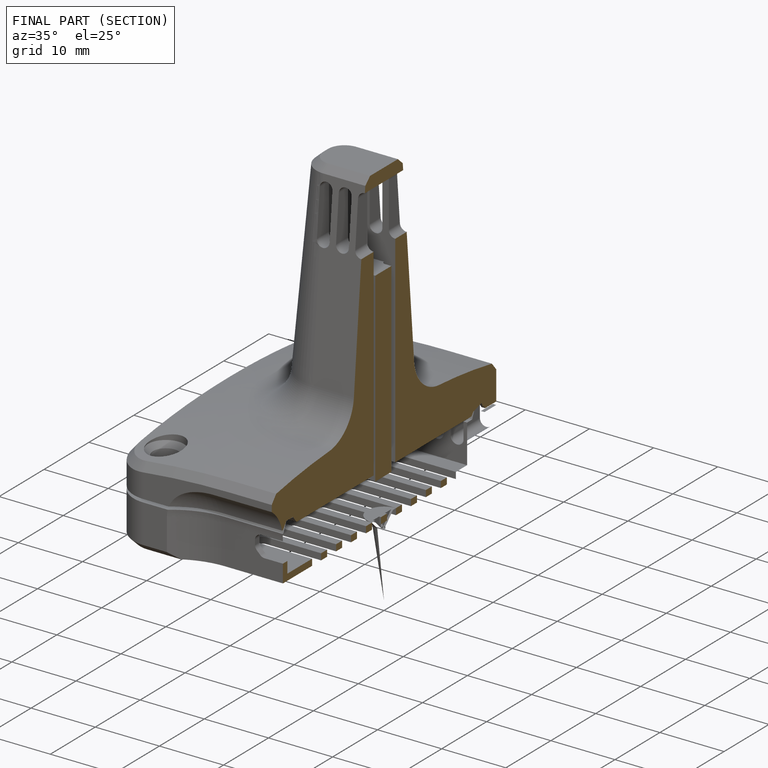
[diagram: finished part — half-section view (interior)]
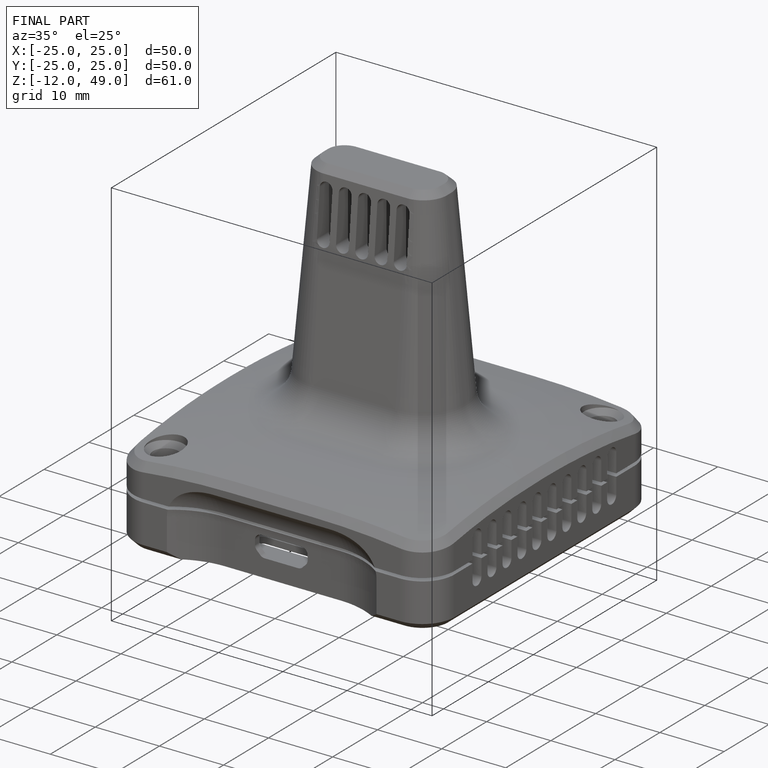
[diagram: finished part — iso view with bounding-box wireframe]
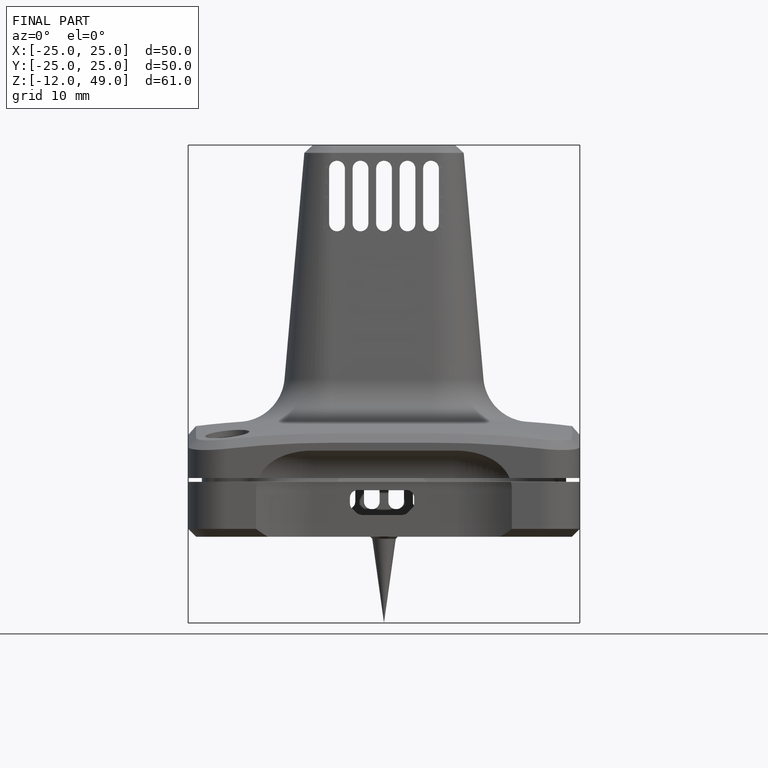
[diagram: finished part — front view with bounding-box wireframe]
